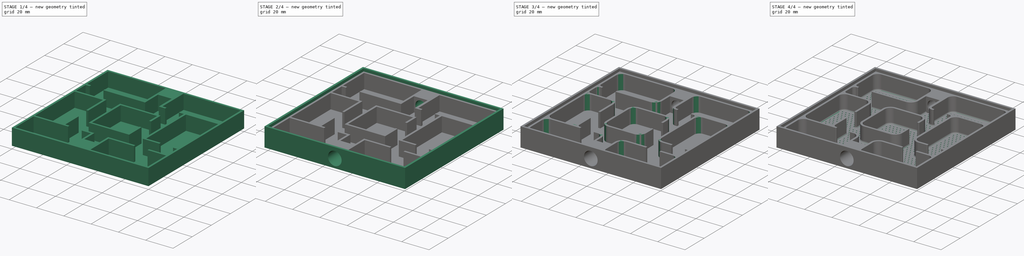
[diagram: build sequence overview — one tinted view per stage of 4, left to right]
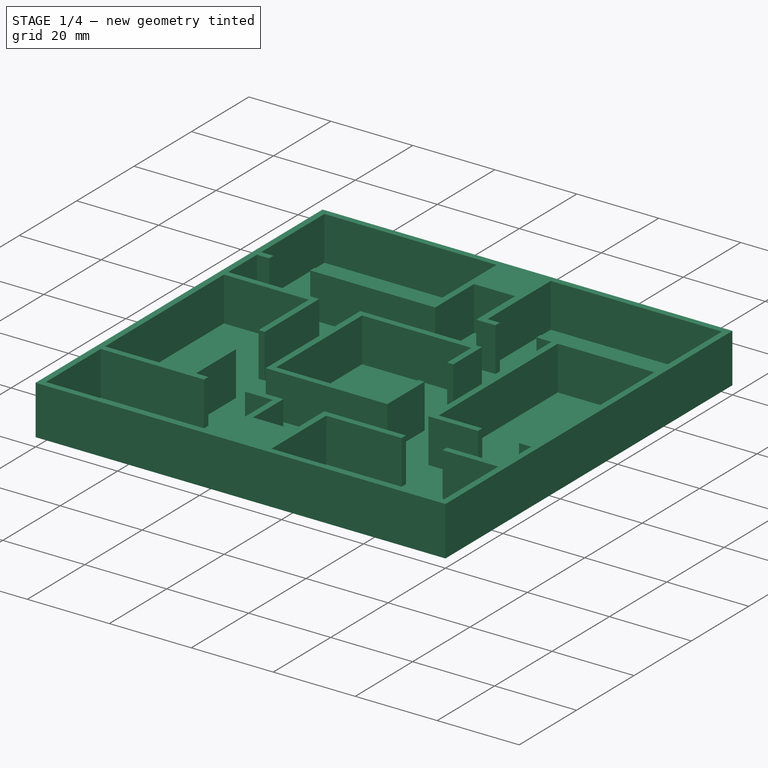
[diagram: stage 1 of 4 — iso view after this stage's code; geometry added in this stage tinted green]
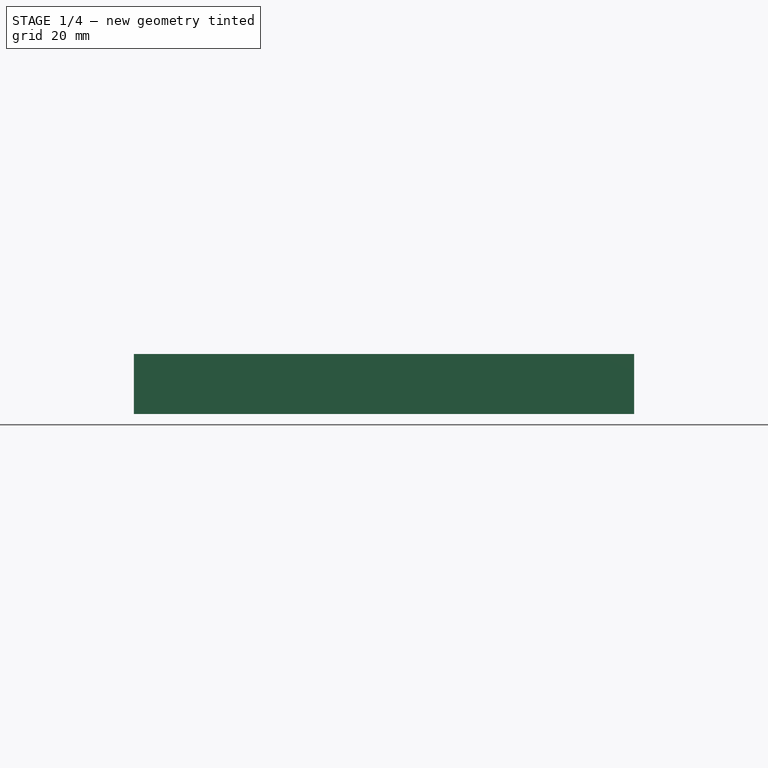
[diagram: stage 1 of 4 — front view after this stage's code; geometry added in this stage tinted green]
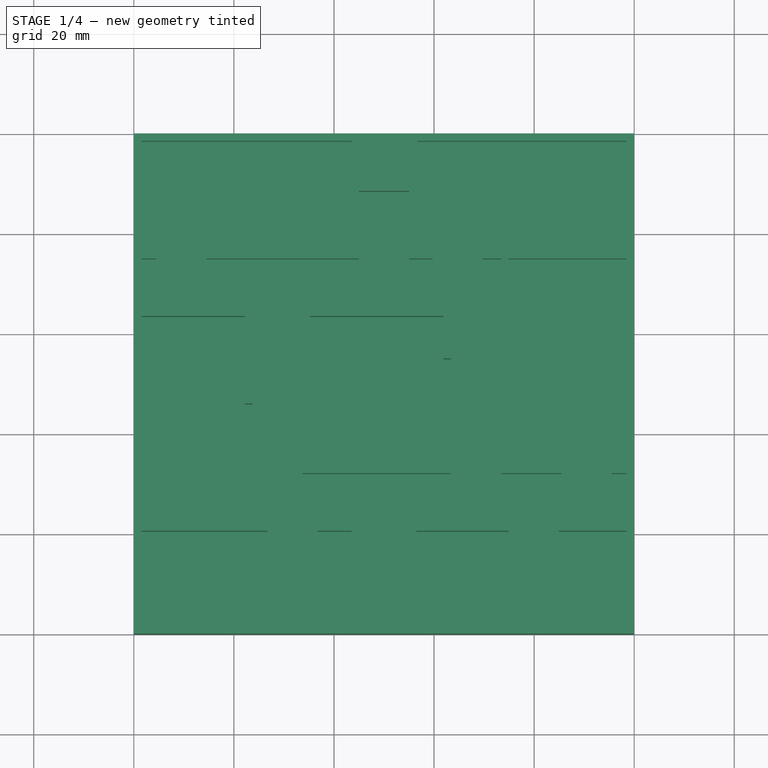
[diagram: stage 1 of 4 — top view after this stage's code; geometry added in this stage tinted green]
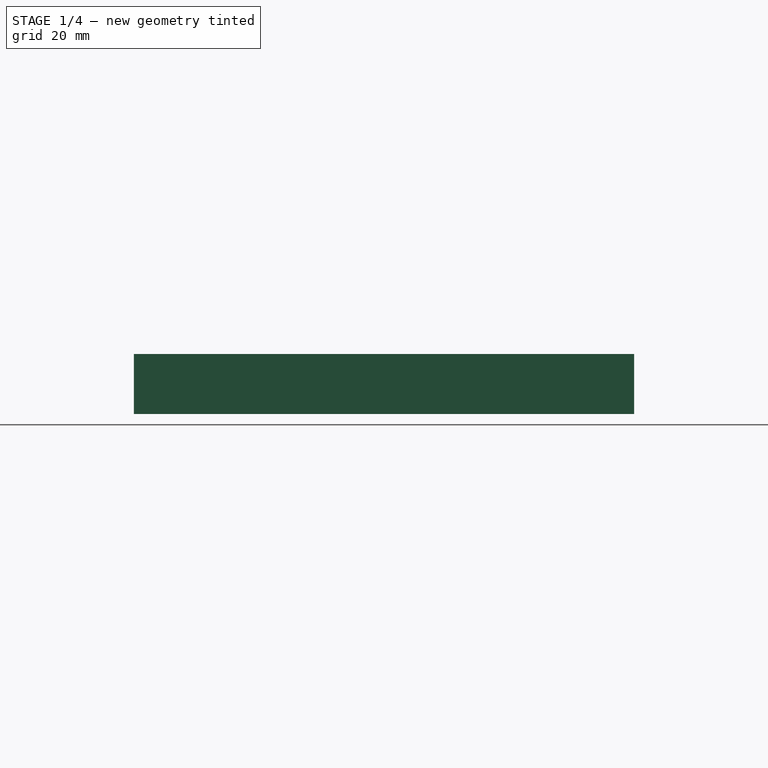
[diagram: stage 1 of 4 — right view after this stage's code; geometry added in this stage tinted green]
FCSTD DOCUMENT  (FreeCAD 0.18R13661 (Git))
Label: test2
License: All rights reserved
LicenseURL: http://en.wikipedia.org/wiki/All_rights_reserved
objects: Sketcher::SketchObject×7, PartDesign::Fillet×6, PartDesign::Pad×4, PartDesign::Hole×2, PartDesign::Pocket×1, PartDesign::Body×1
note: 28 computed .brp shape members not serialized (recipe doc carries the construction recipe); baked Part::Feature solids carry a one-line shape summary decoded from their .brp

FEATURE [Sketcher::SketchObject] Sketch  label="base"
  MapMode = 5
  Support = -> [XY_Plane]
  sketch-geometry (4):
    g0: LineSegment StartX=0 StartY=0 StartZ=0 EndX=100 EndY=0 EndZ=0
    g1: LineSegment StartX=100 StartY=0 StartZ=0 EndX=100 EndY=100 EndZ=0
    g2: LineSegment StartX=100 StartY=100 StartZ=0 EndX=0 EndY=100 EndZ=0
    g3: LineSegment StartX=0 StartY=100 StartZ=0 EndX=0 EndY=0 EndZ=0
  constraints (11):
    c: Coincident(g0,g1)
    c: Coincident(g1,g2)
    c: Coincident(g2,g3)
    c: Coincident(g3,g0)
    c: Horizontal(g0)
    c: Horizontal(g2)
    c: Vertical(g1)
    c: Vertical(g3)
    c: Coincident(g0,g-1)
    c: Distance(g1) = 100
    c: Distance(g0) = 100
FEATURE [PartDesign::Pad] Pad  label="Base"
  Length = 1.25
  Length2 = 100
  Profile = -> Sketch
  Type = 0
FEATURE [Sketcher::SketchObject] Sketch001  label="chambers"
  ExternalGeometry = -> [Sketch]
  MapMode = 5
  Support = -> [XY_Plane]
  sketch-geometry (119):
    g0: LineSegment [constr] StartX=45 StartY=74.9876 StartZ=0 EndX=98.5 EndY=74.9876 EndZ=0
    g1: LineSegment [constr] StartX=98.5 StartY=74.9876 StartZ=0 EndX=98.5 EndY=33.5565 EndZ=0
    g2: LineSegment [constr] StartX=58.9283 StartY=98.5 StartZ=0 EndX=98.5 EndY=98.5 EndZ=0
    g3: LineSegment [constr] StartX=98.5 StartY=98.5 StartZ=0 EndX=98.5 EndY=59.3012 EndZ=0
    g4: LineSegment [constr] StartX=50 StartY=100 StartZ=0 EndX=50 EndY=76.0527 EndZ=0
    g5: LineSegment StartX=0 StartY=0 StartZ=0 EndX=100 EndY=0 EndZ=0
    g6: LineSegment StartX=100 StartY=0 StartZ=0 EndX=100 EndY=100 EndZ=0
    g7: LineSegment StartX=100 StartY=100 StartZ=0 EndX=0 EndY=100 EndZ=0
    g8: LineSegment StartX=0 StartY=100 StartZ=0 EndX=0 EndY=0 EndZ=0
    g9: LineSegment [constr] StartX=0 StartY=1.5 StartZ=0 EndX=1.5 EndY=1.5 EndZ=0
    g10: LineSegment [constr] StartX=1.5 StartY=1.5 StartZ=0 EndX=1.5 EndY=0 EndZ=0
    g11: LineSegment [constr] StartX=98.5 StartY=100 StartZ=0 EndX=98.5 EndY=98.5 EndZ=0
    g12: LineSegment [constr] StartX=98.5 StartY=98.5 StartZ=0 EndX=100 EndY=98.5 EndZ=0
    g13: LineSegment [constr] StartX=1.5 StartY=1.5 StartZ=0 EndX=98.5 EndY=1.5 EndZ=0
    g14: LineSegment [constr] StartX=98.5 StartY=1.5 StartZ=0 EndX=98.5 EndY=98.5 EndZ=0
    g15: LineSegment [constr] StartX=98.5 StartY=98.5 StartZ=0 EndX=1.5 EndY=98.5 EndZ=0
    g16: LineSegment [constr] StartX=1.5 StartY=98.5 StartZ=0 EndX=1.5 EndY=1.5 EndZ=0
    g17: LineSegment [constr] StartX=50 StartY=0 StartZ=0 EndX=50 EndY=23.7426 EndZ=0
    g18: LineSegment [constr] StartX=98.5 StartY=1.5 StartZ=0 EndX=56.5 EndY=1.5 EndZ=0
    g19: LineSegment [constr] StartX=56.5 StartY=1.5 StartZ=0 EndX=56.5 EndY=20.5565 EndZ=0
    g20: LineSegment [constr] StartX=56.5 StartY=20.5565 StartZ=0 EndX=98.5 EndY=20.5565 EndZ=0
    g21: LineSegment [constr] StartX=98.5 StartY=20.5565 StartZ=0 EndX=98.5 EndY=1.5 EndZ=0
    g22: LineSegment [constr] StartX=1.5 StartY=1.5 StartZ=0 EndX=43.5 EndY=1.5 EndZ=0
    g23: LineSegment [constr] StartX=43.5 StartY=1.5 StartZ=0 EndX=43.5 EndY=20.5565 EndZ=0
    g24: LineSegment [constr] StartX=43.5 StartY=20.5565 StartZ=0 EndX=1.5 EndY=20.5565 EndZ=0
    g25: LineSegment [constr] StartX=1.5 StartY=20.5565 StartZ=0 EndX=1.5 EndY=1.5 EndZ=0
    g26: LineSegment [constr] StartX=26.7071 StartY=20.5565 StartZ=0 EndX=36.7071 EndY=20.5565 EndZ=0
    g27: LineSegment [constr] StartX=6.5 StartY=22.0565 StartZ=0 EndX=6.5 EndY=20.5565 EndZ=0
    g28: LineSegment StartX=1.5 StartY=98.5 StartZ=0 EndX=43.5 EndY=98.5 EndZ=0
    g29: LineSegment StartX=43.5 StartY=98.5 StartZ=0 EndX=43.5 EndY=76.4876 EndZ=0
    g30: LineSegment StartX=1.5 StartY=76.4876 StartZ=0 EndX=1.5 EndY=98.5 EndZ=0
    g31: LineSegment [constr] StartX=50 StartY=98.5 StartZ=0 EndX=45 EndY=98.5 EndZ=0
    g32: LineSegment [constr] StartX=50 StartY=98.5 StartZ=0 EndX=55 EndY=98.5 EndZ=0
    g33: LineSegment [constr] StartX=45 StartY=98.5 StartZ=0 EndX=45 EndY=88.5 EndZ=0
    g34: LineSegment StartX=45 StartY=88.5 StartZ=0 EndX=55 EndY=88.5 EndZ=0
    g35: LineSegment [constr] StartX=55 StartY=88.5 StartZ=0 EndX=55 EndY=98.5 EndZ=0
    g36: LineSegment [constr] StartX=45 StartY=95.9558 StartZ=0 EndX=43.5 EndY=95.9558 EndZ=0
    g37: LineSegment StartX=45 StartY=88.5 StartZ=0 EndX=45 EndY=74.9876 EndZ=0
    g38: LineSegment StartX=45 StartY=74.9876 StartZ=0 EndX=14.5 EndY=74.9876 EndZ=0
    g39: LineSegment [constr] StartX=43.5 StartY=76.4876 StartZ=0 EndX=43.5 EndY=74.9876 EndZ=0
    g40: LineSegment StartX=1.5 StartY=76.4876 StartZ=0 EndX=4.5 EndY=76.4876 EndZ=0
    g41: LineSegment [constr] StartX=4.5 StartY=76.4876 StartZ=0 EndX=14.5 EndY=76.4876 EndZ=0
    g42: LineSegment StartX=43.5 StartY=76.4876 StartZ=0 EndX=14.5 EndY=76.4876 EndZ=0
    g43: LineSegment StartX=14.5 StartY=74.9876 StartZ=0 EndX=14.5 EndY=76.4876 EndZ=0
    g44: LineSegment StartX=1.5 StartY=64.9876 StartZ=0 EndX=23.7071 EndY=64.9876 EndZ=0
    g45: LineSegment [constr] StartX=23.7071 StartY=64.9876 StartZ=0 EndX=33.7071 EndY=64.9876 EndZ=0
    g46: LineSegment [constr] StartX=14.5 StartY=74.9876 StartZ=0 EndX=14.5 EndY=64.9876 EndZ=0
    g47: LineSegment StartX=98.5 StartY=98.5 StartZ=0 EndX=56.7128 EndY=98.5 EndZ=0
    g48: LineSegment [constr] StartX=56.7128 StartY=98.5 StartZ=0 EndX=56.7128 EndY=76.4876 EndZ=0
    g49: LineSegment StartX=98.5 StartY=76.4876 StartZ=0 EndX=98.5 EndY=98.5 EndZ=0
    g50: LineSegment StartX=55 StartY=88.5 StartZ=0 EndX=55 EndY=74.9876 EndZ=0
    g51: LineSegment StartX=56.7128 StartY=76.4876 StartZ=0 EndX=56.7128 EndY=98.5 EndZ=0
    g52: LineSegment [constr] StartX=14.5 StartY=64.9876 StartZ=0 EndX=14.5 EndY=63.4876 EndZ=0
    g53: LineSegment StartX=22.2071 StartY=63.4876 StartZ=0 EndX=1.5 EndY=63.4876 EndZ=0
    g54: LineSegment StartX=1.5 StartY=63.4876 StartZ=0 EndX=1.5 EndY=22.0565 EndZ=0
    g55: LineSegment StartX=1.5 StartY=22.0565 StartZ=0 EndX=22.2071 EndY=22.0565 EndZ=0
    g56: LineSegment [constr] StartX=22.2071 StartY=22.0565 StartZ=0 EndX=22.2071 EndY=63.4876 EndZ=0
    g57: LineSegment StartX=23.7071 StartY=64.9876 StartZ=0 EndX=23.7071 EndY=45.9907 EndZ=0
    g58: LineSegment StartX=22.2071 StartY=63.4876 StartZ=0 EndX=22.2071 EndY=45.9907 EndZ=0
    g59: LineSegment [constr] StartX=22.2071 StartY=45.9907 StartZ=0 EndX=22.2071 EndY=35.9907 EndZ=0
    g60: LineSegment StartX=22.2071 StartY=35.9907 StartZ=0 EndX=22.2071 EndY=22.0565 EndZ=0
    g61: LineSegment StartX=23.7071 StartY=45.9907 StartZ=0 EndX=22.2071 EndY=45.9907 EndZ=0
    g62: LineSegment StartX=22.2071 StartY=35.9907 StartZ=0 EndX=23.7071 EndY=35.9907 EndZ=0
    g63: LineSegment StartX=1.5 StartY=20.5565 StartZ=0 EndX=26.7071 EndY=20.5565 EndZ=0
    g64: LineSegment StartX=1.5 StartY=20.5565 StartZ=0 EndX=1.5 EndY=1.5 EndZ=0
    g65: LineSegment StartX=43.5 StartY=1.5 StartZ=0 EndX=1.5 EndY=1.5 EndZ=0
    g66: LineSegment StartX=43.5 StartY=1.5 StartZ=0 EndX=43.5 EndY=20.5565 EndZ=0
    g67: LineSegment StartX=36.7071 StartY=20.5565 StartZ=0 EndX=43.5 EndY=20.5565 EndZ=0
    g68: LineSegment StartX=36.7071 StartY=20.5565 StartZ=0 EndX=36.7071 EndY=22.0565 EndZ=0
    g69: LineSegment StartX=36.7071 StartY=22.0565 StartZ=0 EndX=45 EndY=22.0565 EndZ=0
    g70: LineSegment StartX=45 StartY=11.5 StartZ=0 EndX=45 EndY=22.0565 EndZ=0
    g71: LineSegment [constr] StartX=45 StartY=11.5 StartZ=0 EndX=45 EndY=1.5 EndZ=0
    g72: LineSegment [constr] StartX=45 StartY=11.5 StartZ=0 EndX=43.5 EndY=11.5 EndZ=0
    g73: LineSegment StartX=45 StartY=11.5 StartZ=0 EndX=55 EndY=11.5 EndZ=0
    g74: LineSegment [constr] StartX=55 StartY=11.5 StartZ=0 EndX=56.5 EndY=11.5 EndZ=0
    g75: LineSegment StartX=55 StartY=22.0565 StartZ=0 EndX=55 EndY=11.5 EndZ=0
    g76: LineSegment StartX=74.9196 StartY=22.0565 StartZ=0 EndX=55 EndY=22.0565 EndZ=0
    g77: LineSegment [constr] StartX=56.5 StartY=20.5565 StartZ=0 EndX=56.5 EndY=22.0565 EndZ=0
    g78: LineSegment StartX=56.5 StartY=1.5 StartZ=0 EndX=56.5 EndY=20.5565 EndZ=0
    g79: LineSegment StartX=56.5 StartY=20.5565 StartZ=0 EndX=74.9196 EndY=20.5565 EndZ=0
    g80: LineSegment [constr] StartX=74.9196 StartY=20.5565 StartZ=0 EndX=84.9196 EndY=20.5565 EndZ=0
    g81: LineSegment StartX=84.9196 StartY=20.5565 StartZ=0 EndX=98.5 EndY=20.5565 EndZ=0
    g82: LineSegment StartX=74.9196 StartY=22.0565 StartZ=0 EndX=74.9196 EndY=20.5565 EndZ=0
    g83: LineSegment StartX=84.9196 StartY=22.0565 StartZ=0 EndX=84.9196 EndY=20.5565 EndZ=0
    g84: LineSegment StartX=98.5 StartY=33.5565 StartZ=0 EndX=95.5 EndY=33.5565 EndZ=0
    g85: LineSegment StartX=98.5 StartY=22.0565 StartZ=0 EndX=84.9196 EndY=22.0565 EndZ=0
    g86: LineSegment [constr] StartX=33.7071 StartY=22.0565 StartZ=0 EndX=33.7071 EndY=32.0565 EndZ=0
    g87: LineSegment StartX=85.5 StartY=33.5565 StartZ=0 EndX=85.5 EndY=32.0565 EndZ=0
    g88: LineSegment StartX=98.5 StartY=33.5565 StartZ=0 EndX=98.5 EndY=74.9876 EndZ=0
    g89: LineSegment [constr] StartX=85.5 StartY=32.0565 StartZ=0 EndX=95.5 EndY=32.0565 EndZ=0
    g90: LineSegment StartX=56.5 StartY=1.5 StartZ=0 EndX=98.5 EndY=1.5 EndZ=0
    g91: LineSegment StartX=98.5 StartY=1.5 StartZ=0 EndX=98.5 EndY=20.5565 EndZ=0
    g92: LineSegment [constr] StartX=63.3936 StartY=32.0565 StartZ=0 EndX=73.3936 EndY=32.0565 EndZ=0
    g93: LineSegment [constr] StartX=33.7071 StartY=64.9876 StartZ=0 EndX=63.3936 EndY=64.9876 EndZ=0
    g94: LineSegment [constr] StartX=63.3936 StartY=64.9876 StartZ=0 EndX=63.3936 EndY=32.0565 EndZ=0
    g95: LineSegment [constr] StartX=63.3936 StartY=32.0565 StartZ=0 EndX=33.7071 EndY=32.0565 EndZ=0
    g96: LineSegment StartX=73.3936 StartY=32.0565 StartZ=0 EndX=85.5 EndY=32.0565 EndZ=0
    g97: LineSegment StartX=73.3936 StartY=74.9876 StartZ=0 EndX=73.3936 EndY=32.0565 EndZ=0
    g98: LineSegment StartX=74.8936 StartY=74.9876 StartZ=0 EndX=74.8936 EndY=33.5565 EndZ=0
    g99: LineSegment StartX=74.8936 StartY=33.5565 StartZ=0 EndX=85.5 EndY=33.5565 EndZ=0
    g100: LineSegment StartX=74.8936 StartY=74.9876 StartZ=0 EndX=98.5 EndY=74.9876 EndZ=0
    g101: LineSegment [constr] StartX=73.3936 StartY=53.2611 StartZ=0 EndX=74.8936 EndY=53.2611 EndZ=0
    g102: LineSegment [constr] StartX=33.7071 StartY=64.9876 StartZ=0 EndX=33.7071 EndY=32.0565 EndZ=0
    g103: LineSegment StartX=4.5 StartY=76.4876 StartZ=0 EndX=4.5 EndY=74.9876 EndZ=0
    g104: LineSegment StartX=4.5 StartY=74.9876 StartZ=0 EndX=1.5 EndY=74.9876 EndZ=0
    g105: LineSegment StartX=1.5 StartY=74.9876 StartZ=0 EndX=1.5 EndY=64.9876 EndZ=0
    g106: LineSegment StartX=95.5 StartY=32.0565 StartZ=0 EndX=95.5 EndY=33.5565 EndZ=0
    g107: LineSegment StartX=95.5 StartY=32.0565 StartZ=0 EndX=98.5 EndY=32.0565 EndZ=0
    g108: LineSegment StartX=98.5 StartY=32.0565 StartZ=0 EndX=98.5 EndY=22.0565 EndZ=0
    g109: LineSegment StartX=23.7071 StartY=35.9907 StartZ=0 EndX=23.7071 EndY=22.0565 EndZ=0
    g110: LineSegment StartX=23.7071 StartY=22.0565 StartZ=0 EndX=26.7071 EndY=22.0565 EndZ=0
    g111: LineSegment StartX=26.7071 StartY=22.0565 StartZ=0 EndX=26.7071 EndY=20.5565 EndZ=0
    g112: LineSegment StartX=98.5 StartY=76.4876 StartZ=0 EndX=69.7128 EndY=76.4876 EndZ=0
    g113: LineSegment StartX=55 StartY=74.9876 StartZ=0 EndX=59.7128 EndY=74.9876 EndZ=0
    g114: LineSegment [constr] StartX=59.7128 StartY=74.9876 StartZ=0 EndX=69.7128 EndY=74.9876 EndZ=0
    g115: LineSegment StartX=69.7128 StartY=74.9876 StartZ=0 EndX=73.3936 EndY=74.9876 EndZ=0
    g116: LineSegment StartX=69.7128 StartY=74.9876 StartZ=0 EndX=69.7128 EndY=76.4876 EndZ=0
    g117: LineSegment StartX=56.7128 StartY=76.4876 StartZ=0 EndX=59.7128 EndY=76.4876 EndZ=0
    g118: LineSegment StartX=59.7128 StartY=76.4876 StartZ=0 EndX=59.7128 EndY=74.9876 EndZ=0
  constraints (328):
    c: Coincident(g0,g1)
    c: Horizontal(g0)
    c: Vertical(g1)
    c: Coincident(g2,g3)
    c: Horizontal(g2)
    c: Vertical(g3)
    c: PointOnObject(g4,g-3)
    c: Vertical(g4)
    c: Coincident(g5,g6)
    c: Coincident(g6,g7)
    c: Coincident(g7,g8)
    c: Coincident(g8,g5)
    c: Horizontal(g5)
    c: Horizontal(g7)
    c: Vertical(g6)
    c: Vertical(g8)
    c: Coincident(g5,g-1)
    c: Coincident(g6,g-4)
    c: PointOnObject(g9,g8)
    c: Horizontal(g9)
    c: Coincident(g10,g9)
    c: PointOnObject(g10,g5)
    c: Vertical(g10)
    c: Equal(g9,g10)
    c: PointOnObject(g11,g7)
    c: Vertical(g11)
    c: Coincident(g12,g11)
    c: PointOnObject(g12,g6)
    c: Horizontal(g12)
    c: Equal(g12,g11)
    c: Equal(g12,g10)
    c: Distance(g9) = 1.5
    c: Coincident(g13,g14)
    c: Coincident(g14,g15)
    c: Coincident(g15,g16)
    c: Horizontal(g13)
    c: Horizontal(g15)
    c: Vertical(g14)
    c: Vertical(g16)
    c: Coincident(g13,g9)
    c: Coincident(g14,g11)
    c: Distance(g4,g7) = 50
    c: Coincident(g2,g11)
    c: PointOnObject(g0,g14)
    c: Vertical(g17)
    c: PointOnObject(g17,g5)
    c: Distance(g-1,g17) = 50
    c: Coincident(g18,g19)
    c: Coincident(g19,g20)
    c: Coincident(g20,g21)
    c: Coincident(g21,g18)
    c: Horizontal(g18)
    c: Horizontal(g20)
    c: Vertical(g19)
    c: Vertical(g21)
    c: Coincident(g18,g13)
    c: Coincident(g22,g23)
    c: Coincident(g23,g24)
    c: Coincident(g24,g25)
    c: Coincident(g25,g22)
    c: Horizontal(g22)
    c: Horizontal(g24)
    c: Vertical(g23)
    c: Vertical(g25)
    c: Coincident(g22,g9)
    c: PointOnObject(g24,g16)
    c: Horizontal(g26)
    c: Coincident(g28,g29)
    c: Coincident(g30,g28)
    c: Horizontal(g28)
    c: Vertical(g29)
    c: Vertical(g30)
    c: Coincident(g28,g15)
    c: PointOnObject(g31,g4)
    c: Horizontal(g31)
    c: Distance(g31) = 5
    c: Coincident(g32,g31)
    c: Horizontal(g32)
    c: Equal(g32,g31)
    c: PointOnObject(g31,g15)
    c: Coincident(g33,g31)
    c: Vertical(g33)
    c: Coincident(g34,g33)
    c: Horizontal(g34)
    c: Coincident(g35,g34)
    c: Coincident(g35,g32)
    c: Vertical(g35)
    c: Distance(g33) = 10
    c: PointOnObject(g36,g29)
    c: Horizontal(g36)
    c: Equal(g36,g11)
    c: PointOnObject(g36,g33)
    c: Coincident(g37,g33)
    c: Vertical(g37)
    c: Coincident(g38,g37)
    c: Horizontal(g38)
    c: Coincident(g39,g29)
    c: Vertical(g39)
    c: PointOnObject(g39,g38)
    c: Equal(g36,g39)
    c: Coincident(g40,g30)
    c: Horizontal(g40)
    c: Coincident(g41,g40)
    c: Horizontal(g41)
    c: Equal(g41,g34)
    c: Coincident(g42,g29)
    c: Coincident(g42,g41)
    c: Horizontal(g42)
    c: Coincident(g43,g38)
    c: Coincident(g43,g41)
    c: Vertical(g43)
    c: Horizontal(g44)
    c: Coincident(g45,g44)
    c: Horizontal(g45)
    c: Coincident(g46,g38)
    c: PointOnObject(g46,g45)
    c: Vertical(g46)
    c: Equal(g46,g34)
    c: Coincident(g47,g48)
    c: Coincident(g49,g47)
    c: Horizontal(g47)
    c: Vertical(g48)
    c: Vertical(g49)
    c: Coincident(g47,g2)
    c: PointOnObject(g50,g35)
    c: PointOnObject(g51,g48)
    c: Coincident(g50,g34)
    c: Coincident(g51,g47)
    c: Equal(g45,g34)
    c: Equal(g52,g43)
    c: Vertical(g52)
    c: Coincident(g53,g54)
    c: Coincident(g54,g55)
    c: Coincident(g55,g56)
    c: Coincident(g56,g53)
    c: Horizontal(g53)
    c: Horizontal(g55)
    c: Vertical(g54)
    c: Vertical(g56)
    c: PointOnObject(g54,g16)
    c: PointOnObject(g52,g53)
    c: Coincident(g57,g44)
    c: Vertical(g57)
    c: Coincident(g58,g53)
    c: Coincident(g60,g59)
    c: Coincident(g60,g55)
    c: Equal(g59,g45)
    c: Coincident(g59,g58)
    c: Vertical(g58)
    c: Vertical(g60)
    c: Coincident(g61,g57)
    c: Coincident(g61,g58)
    c: Horizontal(g61)
    c: Equal(g52,g61)
    c: Coincident(g62,g59)
    c: Horizontal(g62)
    c: Vertical(g62,g57)
    c: PointOnObject(g27,g24)
    c: PointOnObject(g27,g55)
    c: Vertical(g27)
    c: Equal(g62,g27)
    c: Coincident(g63,g24)
    c: Horizontal(g63)
    c: Coincident(g64,g24)
    c: Equal(g45,g26)
    c: Coincident(g65,g22)
    c: Coincident(g65,g64)
    c: Coincident(g64,g9)
    c: Coincident(g66,g22)
    c: Coincident(g67,g26)
    c: Coincident(g67,g66)
    c: Coincident(g66,g23)
    c: Coincident(g68,g26)
    c: Vertical(g37,g69)
    c: Horizontal(g69)
    c: Vertical(g68)
    c: Vertical(g70)
    c: Coincident(g71,g70)
    c: Vertical(g71)
    c: Coincident(g72,g70)
    c: Horizontal(g72)
    c: Equal(g72,g68)
    c: PointOnObject(g72,g66)
    c: Equal(g39,g72)
    c: Coincident(g70,g69)
    c: PointOnObject(g71,g13)
    c: Equal(g71,g33)
    c: Coincident(g73,g70)
    c: Equal(g73,g34)
    c: Horizontal(g73)
    c: Coincident(g74,g73)
    c: PointOnObject(g74,g19)
    c: Horizontal(g74)
    c: Coincident(g75,g73)
    c: Horizontal(g76)
    c: Coincident(g76,g75)
    c: Vertical(g75)
    c: PointOnObject(g77,g76)
    c: Coincident(g77,g19)
    c: Vertical(g77)
    c: Equal(g74,g77)
    c: Horizontal(g69,g75)
    c: Coincident(g78,g18)
    c: Coincident(g79,g78)
    c: Horizontal(g80)
    c: Horizontal(g81)
    c: Coincident(g81,g20)
    c: Equal(g80,g73)
    c: Coincident(g80,g81)
    c: Coincident(g79,g80)
    c: Coincident(g78,g19)
    c: Coincident(g82,g76)
    c: Coincident(g82,g79)
    c: Coincident(g83,g80)
    c: Coincident(g84,g1)
    c: Coincident(g85,g83)
    c: Vertical(g82)
    c: Vertical(g83)
    c: Equal(g83,g82)
    c: Horizontal(g85)
    c: Equal(g86,g45)
    c: Vertical(g86)
    c: Vertical(g87)
    c: Equal(g87,g83)
    c: Coincident(g88,g1)
    c: Coincident(g88,g0)
    c: Coincident(g89,g87)
    c: Horizontal(g89)
    c: Coincident(g90,g18)
    c: Coincident(g91,g90)
    c: Coincident(g91,g20)
    c: Coincident(g90,g13)
    c: Equal(g92,g89)
    c: Horizontal(g93)
    c: Coincident(g93,g45)
    c: Vertical(g94)
    c: Coincident(g94,g93)
    c: Horizontal(g95)
    c: Coincident(g95,g94)
    c: Coincident(g95,g86)
    c: Horizontal(g96)
    c: Coincident(g87,g96)
    c: Horizontal(g94,g96)
    c: PointOnObject(g97,g0)
    c: Vertical(g97)
    c: PointOnObject(g92,g94)
    c: Horizontal(g50,g37)
    c: Vertical(g98)
    c: Coincident(g99,g98)
    c: Coincident(g99,g87)
    c: Coincident(g100,g98)
    c: Coincident(g100,g0)
    c: PointOnObject(g101,g97)
    c: PointOnObject(g101,g98)
    c: Horizontal(g101)
    c: Equal(g101,g87)
    c: PointOnObject(g98,g0)
    c: Coincident(g96,g97)
    c: Coincident(g102,g45)
    c: Vertical(g102)
    c: Coincident(g102,g86)
    c: Horizontal(g99)
    c: Horizontal(g87,g84)
    c: Horizontal(g84)
    c: Coincident(g92,g94)
    c: Horizontal(g92)
    c: Coincident(g92,g96)
    c: Equal(g73,g92)
    c: Distance(g40) = 3
    c: Equal(g84,g40)
    c: Distance(g100) = 23.6064
    c: Distance(g55) = 20.7071
    c: Coincident(g52,g46)
    c: PointOnObject(g44,g16)
    c: Coincident(g40,g103)
    c: Coincident(g103,g104)
    c: Horizontal(g104)
    c: Coincident(g104,g105)
    c: Vertical(g105)
    c: Vertical(g103)
    c: Equal(g103,g43)
    c: Coincident(g105,g44)
    c: Coincident(g106,g89)
    c: Coincident(g106,g84)
    c: Vertical(g106)
    c: Coincident(g89,g107)
    c: Coincident(g107,g108)
    c: Coincident(g108,g85)
    c: Vertical(g108)
    c: Horizontal(g107)
    c: PointOnObject(g85,g14)
    c: Equal(g83,g87)
    c: Equal(g11,g106)
    c: PointOnObject(g86,g69)
    c: Coincident(g68,g69)
    c: PointOnObject(g26,g24)
    c: Coincident(g26,g63)
    c: Coincident(g62,g109)
    c: Vertical(g109)
    c: Coincident(g109,g110)
    c: Horizontal(g110)
    c: Coincident(g110,g111)
    c: Vertical(g111)
    c: Coincident(g111,g26)
    c: Horizontal(g109,g55)
    c: Equal(g110,g84)
    c: Coincident(g49,g112)
    c: Horizontal(g112)
    c: Coincident(g0,g37)
    c: Horizontal(g29,g112)
    c: Coincident(g50,g113)
    c: Coincident(g113,g114)
    c: Coincident(g114,g115)
    c: Equal(g114,g34)
    c: Coincident(g115,g97)
    c: PointOnObject(g114,g0)
    c: PointOnObject(g113,g0)
    c: Coincident(g116,g114)
    c: Coincident(g116,g112)
    c: Vertical(g116)
    c: Coincident(g48,g117)
    c: Horizontal(g117)
    c: Coincident(g117,g118)
    c: Vertical(g118)
    c: Coincident(g113,g118)
    c: Coincident(g48,g51)
    c: Equal(g117,g84)
    c: Horizontal(g117,g112)
FEATURE [PartDesign::Pad] Pad001  label="Outer chambers"
  BaseFeature = -> Pad
  Length = 12
  Length2 = 100
  Profile = -> Sketch001
  Type = 0
  expr: Length = 12
FEATURE [Sketcher::SketchObject] Sketch002
  ExternalGeometry = -> [Sketch001]
  MapMode = 5
  Support = -> [XY_Plane]
  sketch-geometry (18):
    g0: LineSegment StartX=33.7071 StartY=32.0565 StartZ=0 EndX=63.3936 EndY=32.0565 EndZ=0
    g1: LineSegment StartX=63.3936 StartY=32.0565 StartZ=0 EndX=63.3936 EndY=45.014 EndZ=0
    g2: LineSegment StartX=63.3936 StartY=45.014 StartZ=0 EndX=61.8936 EndY=45.014 EndZ=0
    g3: LineSegment StartX=61.8936 StartY=45.014 StartZ=0 EndX=61.8936 EndY=33.5565 EndZ=0
    g4: LineSegment StartX=61.8936 StartY=33.5565 StartZ=0 EndX=35.2071 EndY=33.5565 EndZ=0
    g5: LineSegment StartX=35.2071 StartY=33.5565 StartZ=0 EndX=35.2071 EndY=63.4876 EndZ=0
    g6: LineSegment StartX=35.2071 StartY=63.4876 StartZ=0 EndX=61.8936 EndY=63.4876 EndZ=0
    g7: LineSegment StartX=61.8936 StartY=63.4876 StartZ=0 EndX=61.8936 EndY=55.014 EndZ=0
    g8: LineSegment StartX=61.8936 StartY=55.014 StartZ=0 EndX=63.3936 EndY=55.014 EndZ=0
    g9: LineSegment StartX=63.3936 StartY=55.014 StartZ=0 EndX=63.3936 EndY=64.9876 EndZ=0
    g10: LineSegment StartX=63.3936 StartY=64.9876 StartZ=0 EndX=33.7071 EndY=64.9876 EndZ=0
    g11: LineSegment StartX=33.7071 StartY=64.9876 StartZ=0 EndX=33.7071 EndY=32.0565 EndZ=0
    g12: LineSegment [constr] StartX=35.2071 StartY=33.5565 StartZ=0 EndX=33.7071 EndY=33.5565 EndZ=0
    g13: LineSegment [constr] StartX=61.8936 StartY=33.5565 StartZ=0 EndX=61.8936 EndY=32.0565 EndZ=0
    g14: LineSegment [constr] StartX=61.8936 StartY=63.4876 StartZ=0 EndX=61.8936 EndY=64.9876 EndZ=0
    g15: LineSegment [constr] StartX=23.7071 StartY=64.9876 StartZ=0 EndX=33.7071 EndY=64.9876 EndZ=0
    g16: LineSegment [constr] StartX=63.3936 StartY=64.9876 StartZ=0 EndX=73.3936 EndY=64.9876 EndZ=0
    g17: LineSegment [constr] StartX=61.8936 StartY=55.014 StartZ=0 EndX=61.8936 EndY=45.014 EndZ=0
  constraints (53):
    c: Coincident(g5,g4)
    c: Horizontal(g4)
    c: Vertical(g5)
    c: Coincident(g6,g5)
    c: Horizontal(g6)
    c: Coincident(g6,g7)
    c: Coincident(g12,g4)
    c: Horizontal(g12)
    c: PointOnObject(g12,g11)
    c: Coincident(g11,g0)
    c: Horizontal(g0)
    c: Coincident(g3,g4)
    c: Vertical(g3)
    c: Coincident(g2,g3)
    c: Horizontal(g2)
    c: Coincident(g1,g2)
    c: Vertical(g1)
    c: Coincident(g0,g1)
    c: Vertical(g11)
    c: Coincident(g11,g10)
    c: Horizontal(g10)
    c: Coincident(g9,g10)
    c: Vertical(g9)
    c: Coincident(g14,g6)
    c: Vertical(g14)
    c: PointOnObject(g14,g10)
    c: Vertical(g7)
    c: Horizontal(g8)
    c: Coincident(g8,g7)
    c: Coincident(g8,g9)
    c: Equal(g8,g2)
    c: Vertical(g8,g1)
    c: Vertical(g13)
    c: Equal(g12,g2)
    c: Equal(g13,g2)
    c: Coincident(g3,g13)
    c: PointOnObject(g13,g0)
    c: Equal(g14,g8)
    c: Horizontal(g15)
    c: Coincident(g10,g15)
    c: Coincident(g16,g9)
    c: Horizontal(g16)
    c: Equal(g16,g15)
    c: Coincident(g17,g7)
    c: Vertical(g17)
    c: Equal(g17,g16)
    c: Coincident(g17,g2)
    c: PointOnObject(g16,g-10)
    c: Equal(g8,g-12)
    c: PointOnObject(g15,g-13)
    c: Equal(g15,g-6)
    c: Coincident(g15,g-13)
    c: Horizontal(g0,g-10)
FEATURE [PartDesign::Pad] Pad002  label="Central chamber"
  BaseFeature = -> Pad001
  Length = 12
  Length2 = 100
  Profile = -> Sketch002
  Type = 0
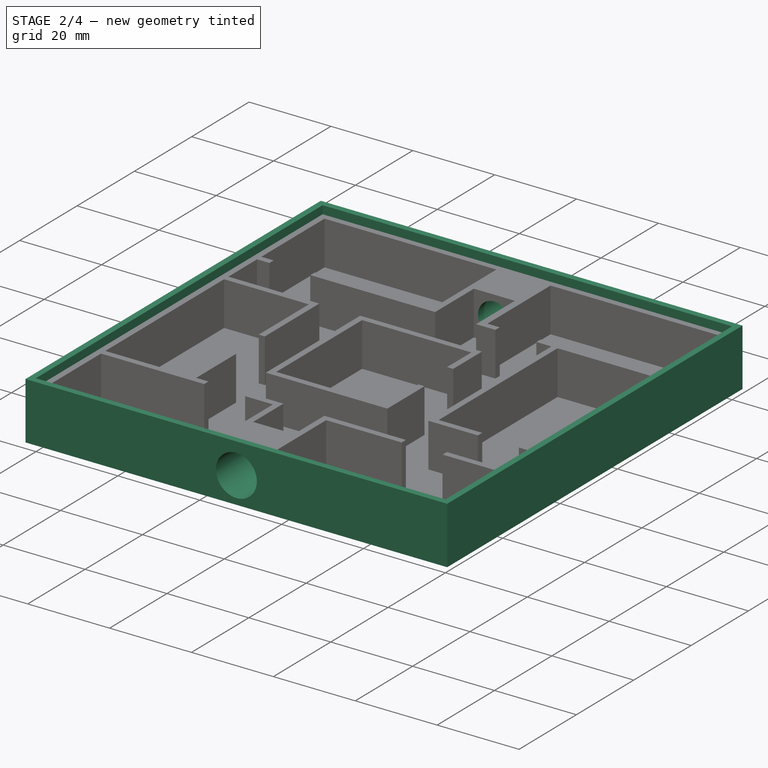
[diagram: stage 2 of 4 — iso view after this stage's code; geometry added in this stage tinted green]
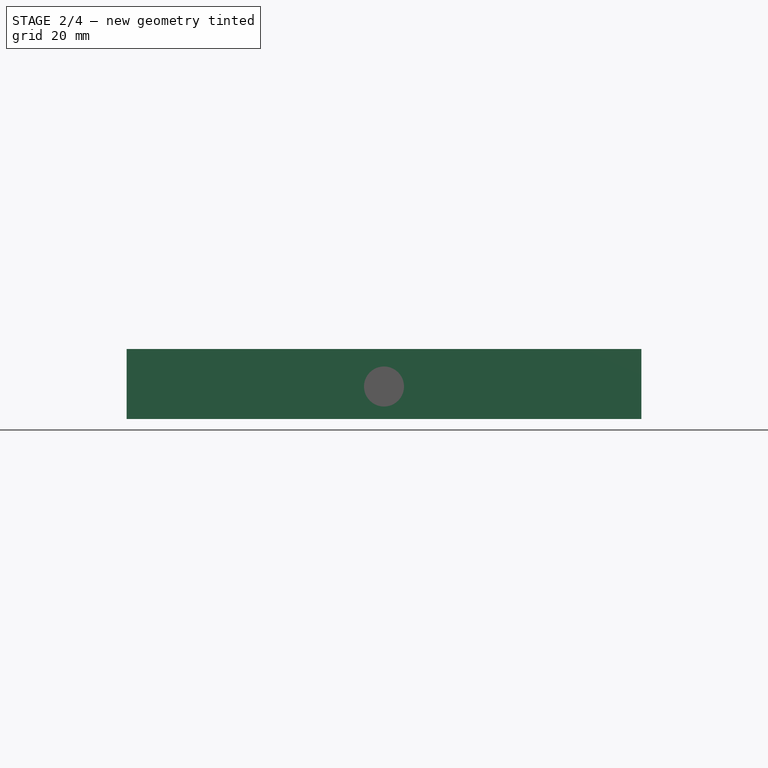
[diagram: stage 2 of 4 — front view after this stage's code; geometry added in this stage tinted green]
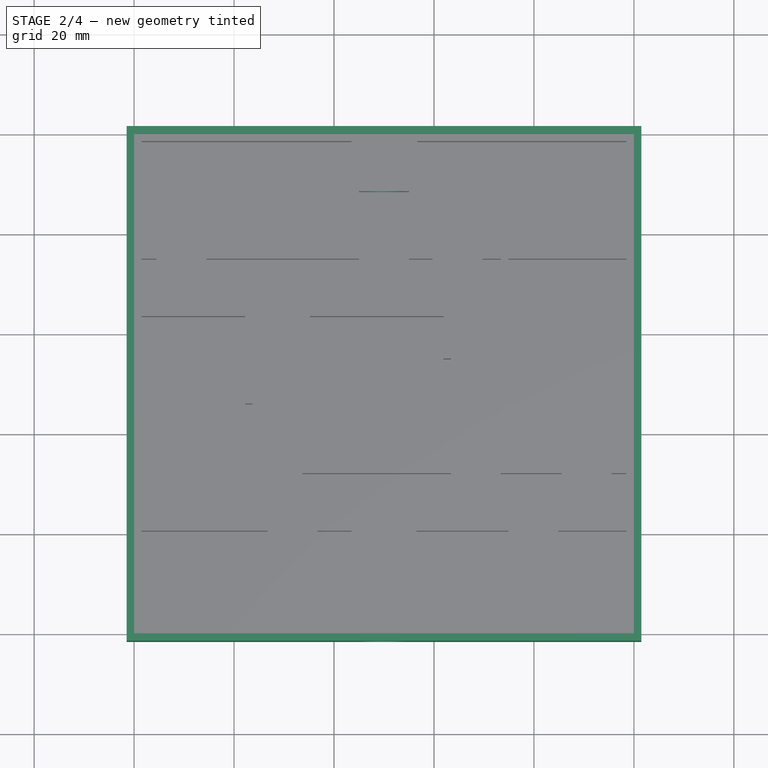
[diagram: stage 2 of 4 — top view after this stage's code; geometry added in this stage tinted green]
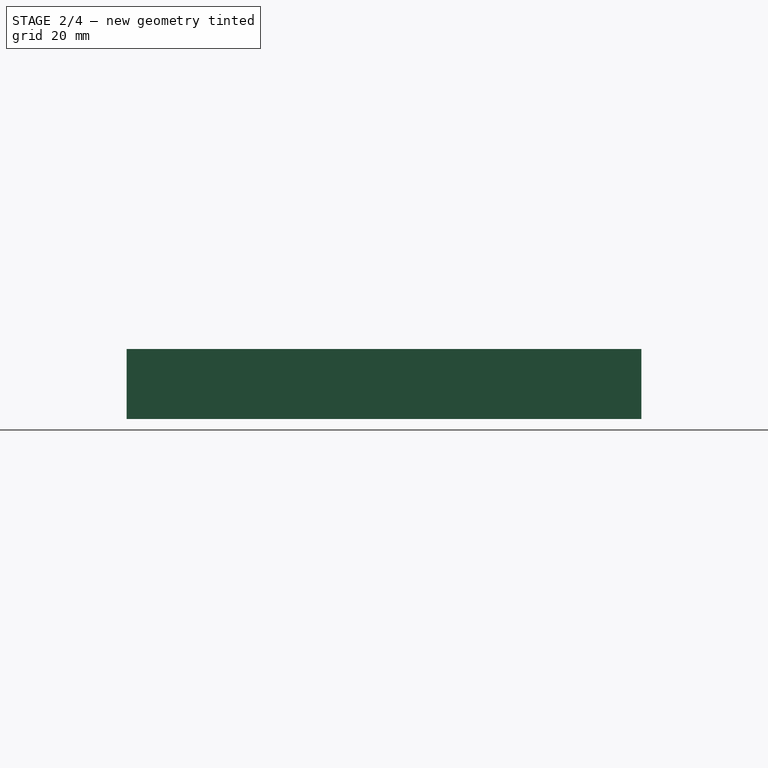
[diagram: stage 2 of 4 — right view after this stage's code; geometry added in this stage tinted green]
FEATURE [Sketcher::SketchObject] Sketch003
  ExternalGeometry = -> [Sketch]
  MapMode = 5
  Support = -> [XY_Plane]
  sketch-geometry (8):
    g0: LineSegment StartX=101.5 StartY=101.5 StartZ=0 EndX=-1.5 EndY=101.5 EndZ=0
    g1: LineSegment StartX=-1.5 StartY=101.5 StartZ=0 EndX=-1.5 EndY=-1.5 EndZ=0
    g2: LineSegment StartX=-1.5 StartY=-1.5 StartZ=0 EndX=101.5 EndY=-1.5 EndZ=0
    g3: LineSegment StartX=101.5 StartY=-1.5 StartZ=0 EndX=101.5 EndY=101.5 EndZ=0
    g4: LineSegment StartX=0 StartY=0 StartZ=0 EndX=100 EndY=0 EndZ=0
    g5: LineSegment StartX=100 StartY=0 StartZ=0 EndX=100 EndY=100 EndZ=0
    g6: LineSegment StartX=100 StartY=100 StartZ=0 EndX=0 EndY=100 EndZ=0
    g7: LineSegment StartX=0 StartY=100 StartZ=0 EndX=0 EndY=0 EndZ=0
  constraints (22):
    c: Coincident(g0,g1)
    c: Coincident(g1,g2)
    c: Coincident(g2,g3)
    c: Coincident(g3,g0)
    c: Horizontal(g0)
    c: Horizontal(g2)
    c: Vertical(g1)
    c: Vertical(g3)
    c: DistanceX(g1,g-1) = 1.5
    c: DistanceY(g1,g-1) = 1.5
    c: DistanceX(g-3,g2) = 1.5
    c: DistanceY(g-4,g0) = 1.5
    c: Coincident(g4,g5)
    c: Coincident(g5,g6)
    c: Coincident(g6,g7)
    c: Coincident(g7,g4)
    c: Horizontal(g4)
    c: Horizontal(g6)
    c: Vertical(g5)
    c: Vertical(g7)
    c: Coincident(g4,g-1)
    c: Coincident(g5,g-4)
FEATURE [PartDesign::Pad] Pad003  label="Rim"
  BaseFeature = -> Pad002
  Length = 14
  Length2 = 100
  Profile = -> Sketch003
  Type = 0
FEATURE [Sketcher::SketchObject] Sketch004
  MapMode = 5
  Placement = pos=(0,-1.5,0) rot=(1,0,0;1.5708rad)
  Support = -> [Pad003]
  sketch-geometry (4):
    g0: LineSegment [constr] StartX=-1.5 StartY=0 StartZ=0 EndX=50 EndY=0 EndZ=0
    g1: LineSegment [constr] StartX=50 StartY=0 StartZ=0 EndX=101.5 EndY=0 EndZ=0
    g2: LineSegment [constr] StartX=50 StartY=0 StartZ=0 EndX=50 EndY=6.5 EndZ=0
    g3: Circle CenterX=50 CenterY=6.5 CenterZ=0 NormalX=0 NormalY=0 NormalZ=1 AngleXU=0 Radius=2.91105
FEATURE [PartDesign::Hole] Hole  label="Connector hole 1"
  BaseFeature = -> Pad003
  Depth = 13
  DepthType = 0
  Diameter = 8
  DrillPoint = 0
  DrillPointAngle = 118
  HoleCutCountersinkAngle = 90
  HoleCutDepth = 11
  HoleCutDiameter = 10
  HoleCutType = 1
  ModelActualThread = false
  Profile = -> Sketch004
  Tapered = false
  TaperedAngle = 90
  ThreadAngle = 0
  ThreadClass = 0
  ThreadCutOffInner = 0
  ThreadCutOffOuter = 0
  ThreadDirection = 0
  ThreadFit = 0
  ThreadPitch = 0
  ThreadSize = 0
  ThreadType = 0
  Threaded = false
FEATURE [Sketcher::SketchObject] Sketch005
  MapMode = 5
  Placement = pos=(0,101.5,0) rot=(0,0.707107,0.707107;3.14159rad)
  Support = -> [Hole]
  sketch-geometry (4):
    g0: LineSegment [constr] StartX=-101.5 StartY=0 StartZ=0 EndX=-50 EndY=0 EndZ=0
    g1: LineSegment [constr] StartX=-50 StartY=0 StartZ=0 EndX=1.5 EndY=0 EndZ=0
    g2: LineSegment [constr] StartX=-50 StartY=0 StartZ=0 EndX=-50 EndY=6.5 EndZ=0
    g3: Circle CenterX=-50 CenterY=6.5 CenterZ=0 NormalX=0 NormalY=0 NormalZ=1 AngleXU=0 Radius=2.84316
FEATURE [PartDesign::Hole] Hole001  label="Connector hole 2"
  BaseFeature = -> Hole
  Depth = 13
  DepthType = 0
  Diameter = 8
  DrillPoint = 0
  DrillPointAngle = 118
  HoleCutCountersinkAngle = 90
  HoleCutDepth = 11
  HoleCutDiameter = 10
  HoleCutType = 1
  ModelActualThread = false
  Profile = -> Sketch005
  Tapered = false
  TaperedAngle = 90
  ThreadAngle = 0
  ThreadClass = 0
  ThreadCutOffInner = 0
  ThreadCutOffOuter = 0
  ThreadDirection = 0
  ThreadFit = 0
  ThreadPitch = 0
  ThreadSize = 0
  ThreadType = 0
  Threaded = false
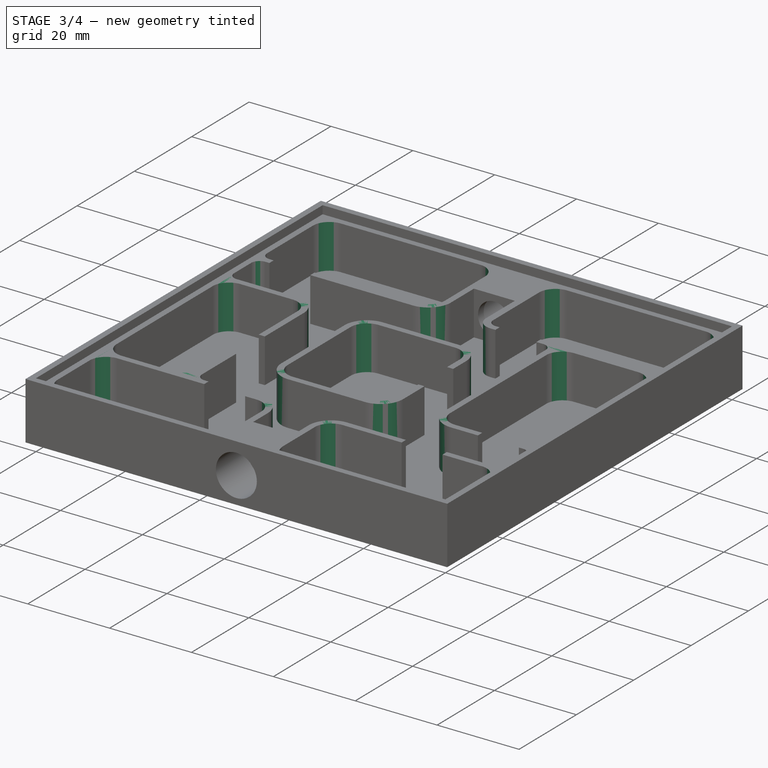
[diagram: stage 3 of 4 — iso view after this stage's code; geometry added in this stage tinted green]
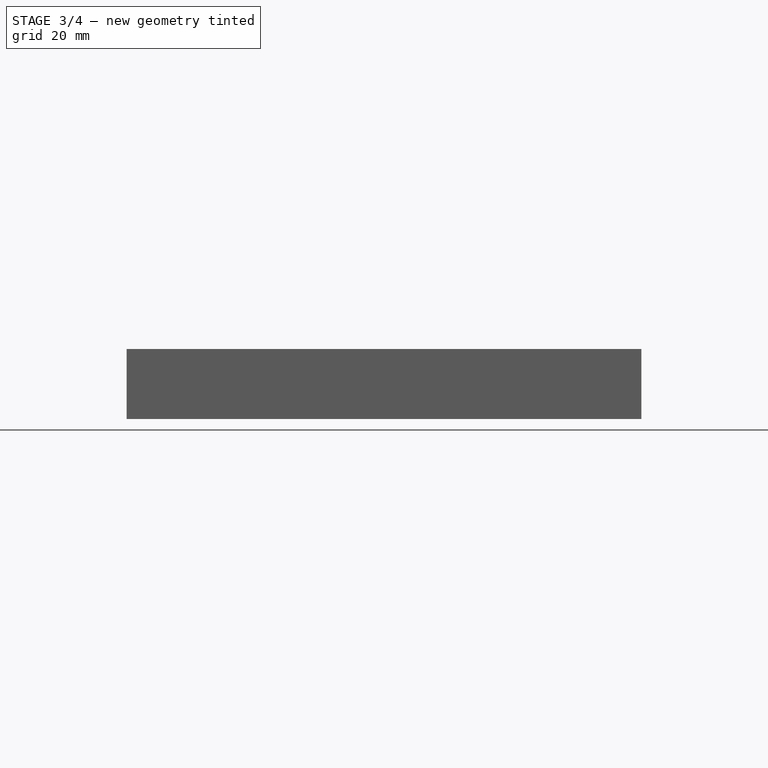
[diagram: stage 3 of 4 — front view after this stage's code; geometry added in this stage tinted green]
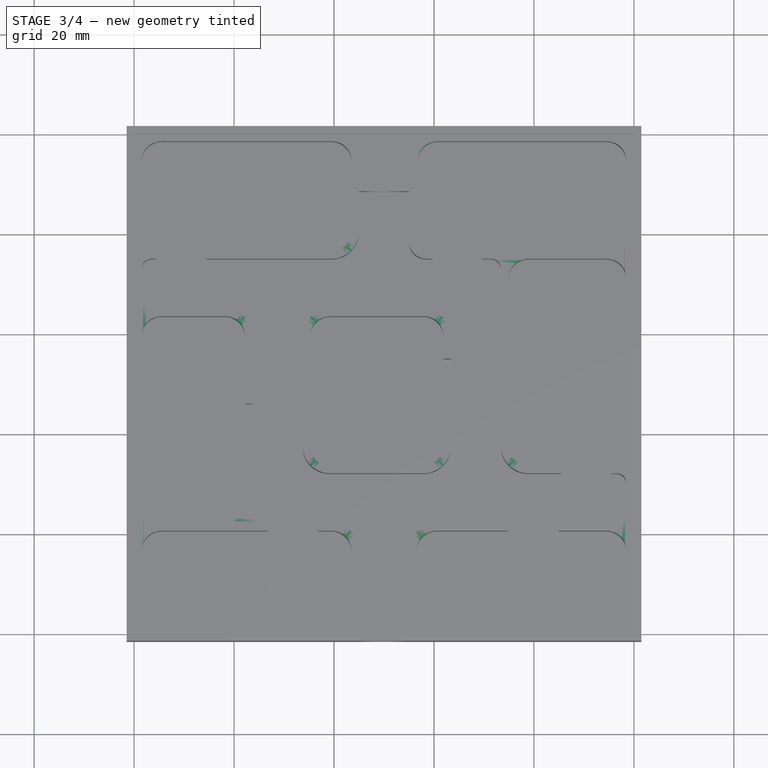
[diagram: stage 3 of 4 — top view after this stage's code; geometry added in this stage tinted green]
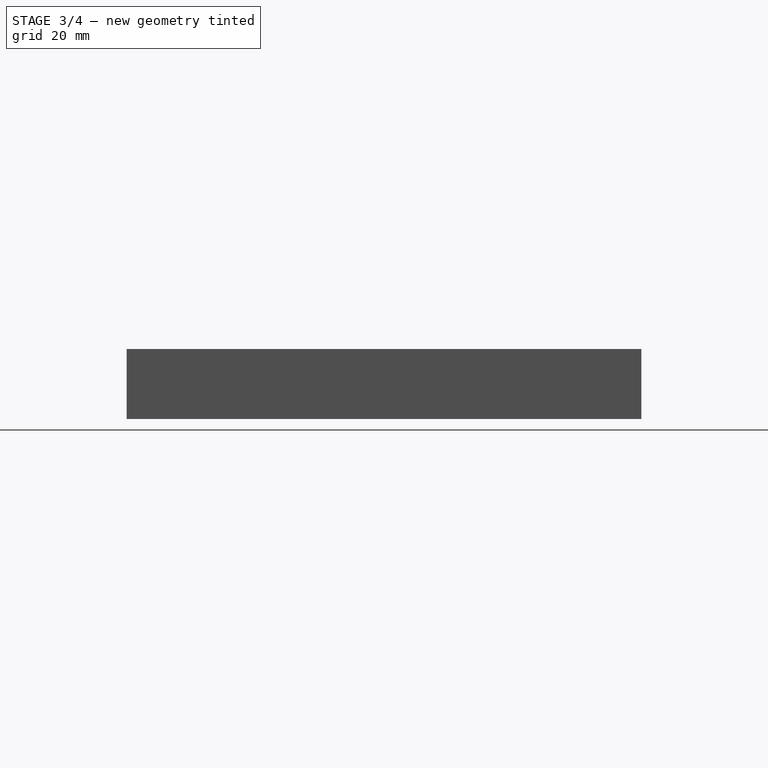
[diagram: stage 3 of 4 — right view after this stage's code; geometry added in this stage tinted green]
FEATURE [PartDesign::Fillet] Fillet  label="Large chamber corner"
  Base = -> Hole001 [Edge148,Edge216,Edge203,Edge180,Edge178,Edge207,Edge182,Edge196,Edge175,Edge222,Edge184,Edge205,Edge209,Edge164,Edge150,Edge177,Edge193,Edge173,Edge220,Edge191,Edge218,Edge152,Edge166,Edge161,Edge159]
  BaseFeature = -> Hole001
  Radius = 4
FEATURE [PartDesign::Fillet] Fillet001  label="Small chamber corner"
  Base = -> Fillet [Edge234,Edge247,Edge251,Edge194,Edge159,Edge103,Edge119,Edge115,Edge176]
  BaseFeature = -> Fillet
  Radius = 2
FEATURE [PartDesign::Fillet] Fillet002  label="Large chamber corner outer rad"
  Base = -> Fillet001 [Edge311,Edge251,Edge217,Edge265,Edge319,Edge145,Edge315,Edge142,Edge323]
  BaseFeature = -> Fillet001
  Radius = 5.5
FEATURE [PartDesign::Fillet] Fillet003  label="Small chamber corner outer rad"
  Base = -> Fillet002 [Edge202]
  BaseFeature = -> Fillet002
  Radius = 3.5
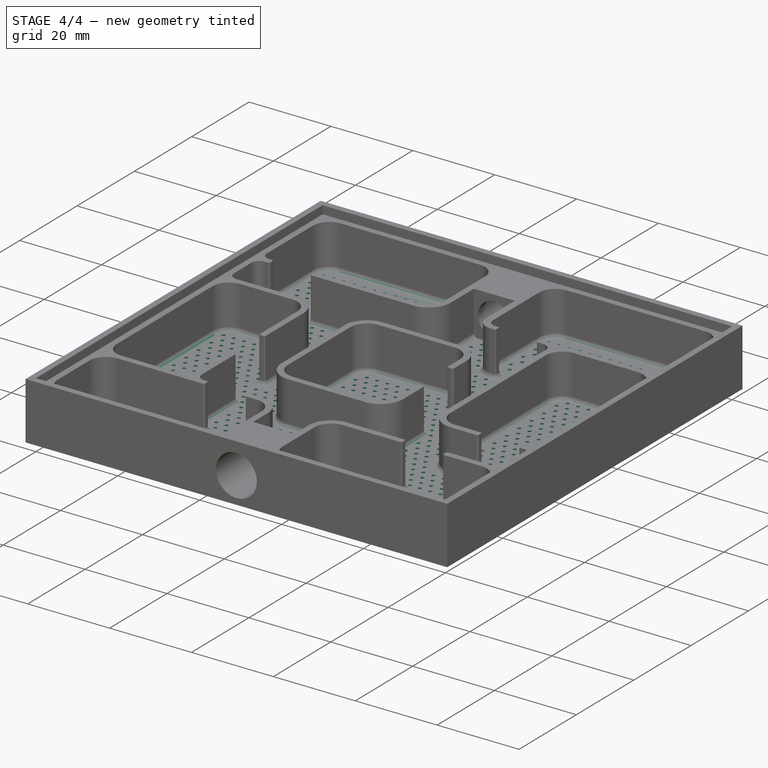
[diagram: stage 4 of 4 — iso view after this stage's code; geometry added in this stage tinted green]
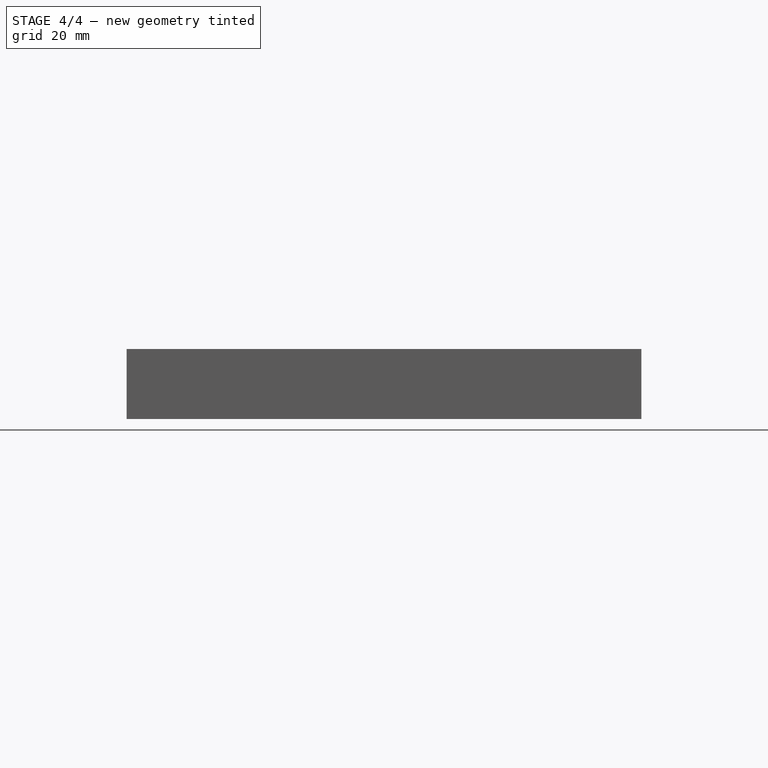
[diagram: stage 4 of 4 — front view after this stage's code; geometry added in this stage tinted green]
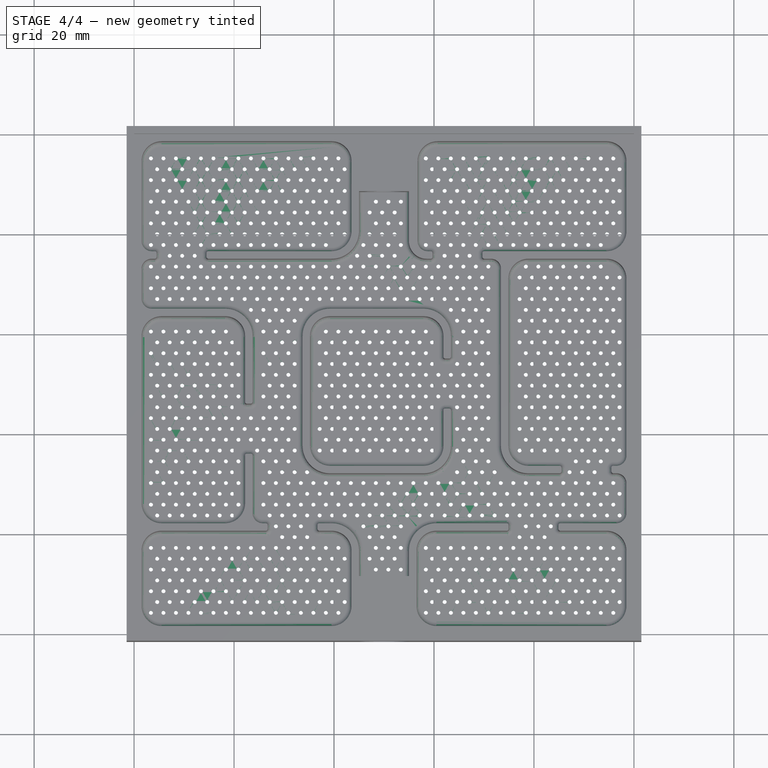
[diagram: stage 4 of 4 — top view after this stage's code; geometry added in this stage tinted green]
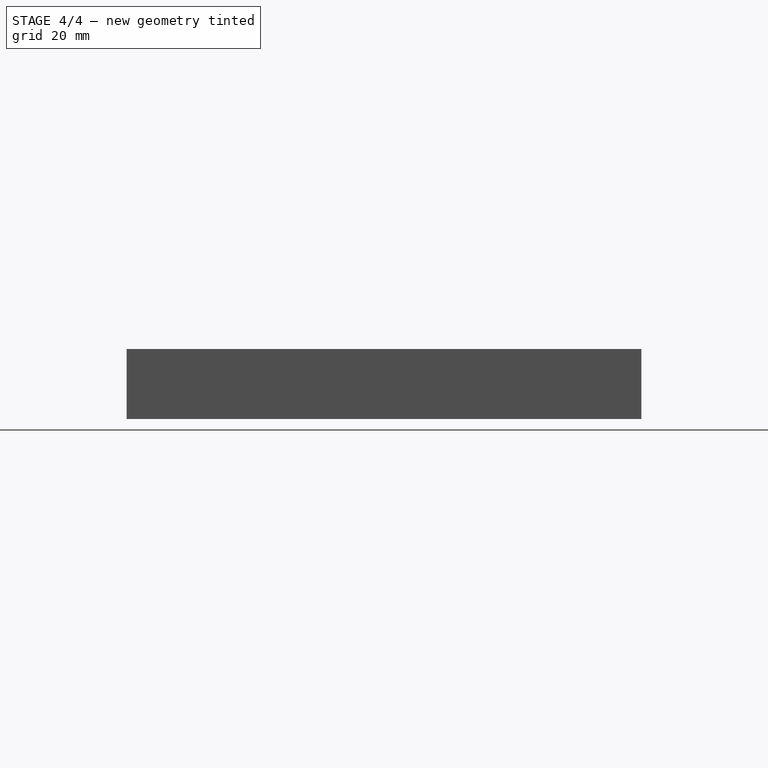
[diagram: stage 4 of 4 — right view after this stage's code; geometry added in this stage tinted green]
FEATURE [PartDesign::Fillet] Fillet004  label="Wall end"
  Base = -> Fillet003 [Edge297,Edge302,Edge271,Edge267,Edge193,Edge198,Edge183,Edge179,Edge129,Edge134,Edge359,Edge354,Edge215,Edge211,Edge311,Edge307,Edge257,Edge261,Edge233,Edge238,Edge169,Edge174,Edge143,Edge139,Edge324,Edge328,Edge251,Edge255]
  BaseFeature = -> Fillet003
  Radius = 0.35
FEATURE [PartDesign::Fillet] Fillet005
  Base = -> Fillet004 [Edge29,Edge16,Edge144]
  BaseFeature = -> Fillet004
  Radius = 1
FEATURE [Sketcher::SketchObject] Sketch006
  MapMode = 5
  Support = -> [XY_Plane]
  sketch-geometry (1309):
    g0: Circle CenterX=5.875 CenterY=95.2524 CenterZ=0 NormalX=0 NormalY=0 NormalZ=1 AngleXU=0 Radius=0.4
    g1: Circle CenterX=8.375 CenterY=95.2524 CenterZ=0 NormalX=0 NormalY=0 NormalZ=1 AngleXU=0 Radius=0.4
    g2: Circle CenterX=10.875 CenterY=95.2524 CenterZ=0 NormalX=0 NormalY=0 NormalZ=1 AngleXU=0 Radius=0.4
    g3: Circle CenterX=13.375 CenterY=95.2524 CenterZ=0 NormalX=0 NormalY=0 NormalZ=1 AngleXU=0 Radius=0.4
    g4: Circle CenterX=15.875 CenterY=95.2524 CenterZ=0 NormalX=0 NormalY=0 NormalZ=1 AngleXU=0 Radius=0.4
    g5: Circle CenterX=18.375 CenterY=95.2524 CenterZ=0 NormalX=0 NormalY=0 NormalZ=1 AngleXU=0 Radius=0.4
    g6: Circle CenterX=20.875 CenterY=95.2524 CenterZ=0 NormalX=0 NormalY=0 NormalZ=1 AngleXU=0 Radius=0.4
    g7: Circle CenterX=23.375 CenterY=95.2524 CenterZ=0 NormalX=0 NormalY=0 NormalZ=1 AngleXU=0 Radius=0.4
    g8: Circle CenterX=25.875 CenterY=95.2524 CenterZ=0 NormalX=0 NormalY=0 NormalZ=1 AngleXU=0 Radius=0.4
    g9: Circle CenterX=28.375 CenterY=95.2524 CenterZ=0 NormalX=0 NormalY=0 NormalZ=1 AngleXU=0 Radius=0.4
    g10: Circle CenterX=30.875 CenterY=95.2524 CenterZ=0 NormalX=0 NormalY=0 NormalZ=1 AngleXU=0 Radius=0.4
    g11: Circle CenterX=33.375 CenterY=95.2524 CenterZ=0 NormalX=0 NormalY=0 NormalZ=1 AngleXU=0 Radius=0.4
    g12: Circle CenterX=35.875 CenterY=95.2524 CenterZ=0 NormalX=0 NormalY=0 NormalZ=1 AngleXU=0 Radius=0.4
    g13: Circle CenterX=38.375 CenterY=95.2524 CenterZ=0 NormalX=0 NormalY=0 NormalZ=1 AngleXU=0 Radius=0.4
    g14: Circle CenterX=40.875 CenterY=95.2524 CenterZ=0 NormalX=0 NormalY=0 NormalZ=1 AngleXU=0 Radius=0.4
    g15: Circle CenterX=58.375 CenterY=95.2523 CenterZ=0 NormalX=0 NormalY=0 NormalZ=1 AngleXU=0 Radius=0.4
    g16: Circle CenterX=60.875 CenterY=95.2523 CenterZ=0 NormalX=0 NormalY=0 NormalZ=1 AngleXU=0 Radius=0.4
    g17: Circle CenterX=63.375 CenterY=95.2523 CenterZ=0 NormalX=0 NormalY=0 NormalZ=1 AngleXU=0 Radius=0.4
    g18: Circle CenterX=65.875 CenterY=95.2523 CenterZ=0 NormalX=0 NormalY=0 NormalZ=1 AngleXU=0 Radius=0.4
    g19: Circle CenterX=68.375 CenterY=95.2523 CenterZ=0 NormalX=0 NormalY=0 NormalZ=1 AngleXU=0 Radius=0.4
    g20: Circle CenterX=70.875 CenterY=95.2523 CenterZ=0 NormalX=0 NormalY=0 NormalZ=1 AngleXU=0 Radius=0.4
    g21: Circle CenterX=73.375 CenterY=95.2523 CenterZ=0 NormalX=0 NormalY=0 NormalZ=1 AngleXU=0 Radius=0.4
    g22: Circle CenterX=75.875 CenterY=95.2523 CenterZ=0 NormalX=0 NormalY=0 NormalZ=1 AngleXU=0 Radius=0.4
    g23: Circle CenterX=78.375 CenterY=95.2523 CenterZ=0 NormalX=0 NormalY=0 NormalZ=1 AngleXU=0 Radius=0.4
    g24: Circle CenterX=80.875 CenterY=95.2523 CenterZ=0 NormalX=0 NormalY=0 NormalZ=1 AngleXU=0 Radius=0.4
    g25: Circle CenterX=83.375 CenterY=95.2523 CenterZ=0 NormalX=0 NormalY=0 NormalZ=1 AngleXU=0 Radius=0.4
    g26: Circle CenterX=85.875 CenterY=95.2523 CenterZ=0 NormalX=0 NormalY=0 NormalZ=1 AngleXU=0 Radius=0.4
    g27: Circle CenterX=88.375 CenterY=95.2523 CenterZ=0 NormalX=0 NormalY=0 NormalZ=1 AngleXU=0 Radius=0.4
    g28: Circle CenterX=90.875 CenterY=95.2523 CenterZ=0 NormalX=0 NormalY=0 NormalZ=1 AngleXU=0 Radius=0.4
    g29: Circle CenterX=93.375 CenterY=95.2523 CenterZ=0 NormalX=0 NormalY=0 NormalZ=1 AngleXU=0 Radius=0.4
    g30: Circle CenterX=95.875 CenterY=95.2523 CenterZ=0 NormalX=0 NormalY=0 NormalZ=1 AngleXU=0 Radius=0.4
    g31: Circle CenterX=3.375 CenterY=95.2524 CenterZ=0 NormalX=0 NormalY=0 NormalZ=1 AngleXU=0 Radius=0.4
    g32: Circle CenterX=4.625 CenterY=93.0875 CenterZ=0 NormalX=0 NormalY=0 NormalZ=1 AngleXU=0 Radius=0.4
    g33: Circle CenterX=7.125 CenterY=93.0874 CenterZ=0 NormalX=0 NormalY=0 NormalZ=1 AngleXU=0 Radius=0.4
    g34: Circle CenterX=9.625 CenterY=93.0874 CenterZ=0 NormalX=0 NormalY=0 NormalZ=1 AngleXU=0 Radius=0.4
    g35: Circle CenterX=12.125 CenterY=93.0874 CenterZ=0 NormalX=0 NormalY=0 NormalZ=1 AngleXU=0 Radius=0.4
    g36: Circle CenterX=14.625 CenterY=93.0874 CenterZ=0 NormalX=0 NormalY=0 NormalZ=1 AngleXU=0 Radius=0.4
    g37: Circle CenterX=17.125 CenterY=93.0874 CenterZ=0 NormalX=0 NormalY=0 NormalZ=1 AngleXU=0 Radius=0.4
    g38: Circle CenterX=19.625 CenterY=93.0874 CenterZ=0 NormalX=0 NormalY=0 NormalZ=1 AngleXU=0 Radius=0.4
    g39: Circle CenterX=22.125 CenterY=93.0874 CenterZ=0 NormalX=0 NormalY=0 NormalZ=1 AngleXU=0 Radius=0.4
    g40: Circle CenterX=24.625 CenterY=93.0874 CenterZ=0 NormalX=0 NormalY=0 NormalZ=1 AngleXU=0 Radius=0.4
    g41: Circle CenterX=27.125 CenterY=93.0874 CenterZ=0 NormalX=0 NormalY=0 NormalZ=1 AngleXU=0 Radius=0.4
    g42: Circle CenterX=29.625 CenterY=93.0874 CenterZ=0 NormalX=0 NormalY=0 NormalZ=1 AngleXU=0 Radius=0.4
    g43: Circle CenterX=32.125 CenterY=93.0874 CenterZ=0 NormalX=0 NormalY=0 NormalZ=1 AngleXU=0 Radius=0.4
    g44: Circle CenterX=34.625 CenterY=93.0874 CenterZ=0 NormalX=0 NormalY=0 NormalZ=1 AngleXU=0 Radius=0.4
    g45: Circle CenterX=37.125 CenterY=93.0874 CenterZ=0 NormalX=0 NormalY=0 NormalZ=1 AngleXU=0 Radius=0.4
    g46: Circle CenterX=39.625 CenterY=93.0874 CenterZ=0 NormalX=0 NormalY=0 NormalZ=1 AngleXU=0 Radius=0.4
    g47: Circle CenterX=42.125 CenterY=93.0874 CenterZ=0 NormalX=0 NormalY=0 NormalZ=1 AngleXU=0 Radius=0.4
    g48: Circle CenterX=5.875 CenterY=90.9224 CenterZ=0 NormalX=0 NormalY=0 NormalZ=1 AngleXU=0 Radius=0.4
    g49: Circle CenterX=8.375 CenterY=90.9224 CenterZ=0 NormalX=0 NormalY=0 NormalZ=1 AngleXU=0 Radius=0.4
    g50: Circle CenterX=10.875 CenterY=90.9224 CenterZ=0 NormalX=0 NormalY=0 NormalZ=1 AngleXU=0 Radius=0.4
    g51: Circle CenterX=13.375 CenterY=90.9224 CenterZ=0 NormalX=0 NormalY=0 NormalZ=1 AngleXU=0 Radius=0.4
    g52: Circle CenterX=15.875 CenterY=90.9224 CenterZ=0 NormalX=0 NormalY=0 NormalZ=1 AngleXU=0 Radius=0.4
    g53: Circle CenterX=18.375 CenterY=90.9224 CenterZ=0 NormalX=0 NormalY=0 NormalZ=1 AngleXU=0 Radius=0.4
    g54: Circle CenterX=20.875 CenterY=90.9224 CenterZ=0 NormalX=0 NormalY=0 NormalZ=1 AngleXU=0 Radius=0.4
    g55: Circle CenterX=23.375 CenterY=90.9224 CenterZ=0 NormalX=0 NormalY=0 NormalZ=1 AngleXU=0 Radius=0.4
    g56: Circle CenterX=25.875 CenterY=90.9224 CenterZ=0 NormalX=0 NormalY=0 NormalZ=1 AngleXU=0 Radius=0.4
    g57: Circle CenterX=28.375 CenterY=90.9224 CenterZ=0 NormalX=0 NormalY=0 NormalZ=1 AngleXU=0 Radius=0.4
    g58: Circle CenterX=30.875 CenterY=90.9224 CenterZ=0 NormalX=0 NormalY=0 NormalZ=1 AngleXU=0 Radius=0.4
    g59: Circle CenterX=33.375 CenterY=90.9224 CenterZ=0 NormalX=0 NormalY=0 NormalZ=1 AngleXU=0 Radius=0.4
    g60: Circle CenterX=35.875 CenterY=90.9224 CenterZ=0 NormalX=0 NormalY=0 NormalZ=1 AngleXU=0 Radius=0.4
    g61: Circle CenterX=38.375 CenterY=90.9223 CenterZ=0 NormalX=0 NormalY=0 NormalZ=1 AngleXU=0 Radius=0.4
    g62: Circle CenterX=40.875 CenterY=90.9223 CenterZ=0 NormalX=0 NormalY=0 NormalZ=1 AngleXU=0 Radius=0.4
    g63: Circle CenterX=97.125 CenterY=93.0873 CenterZ=0 NormalX=0 NormalY=0 NormalZ=1 AngleXU=0 Radius=0.4
    g64: Circle CenterX=3.375 CenterY=90.9224 CenterZ=0 NormalX=0 NormalY=0 NormalZ=1 AngleXU=0 Radius=0.4
    g65: Circle CenterX=59.625 CenterY=93.0874 CenterZ=0 NormalX=0 NormalY=0 NormalZ=1 AngleXU=0 Radius=0.4
    g66: Circle CenterX=62.125 CenterY=93.0874 CenterZ=0 NormalX=0 NormalY=0 NormalZ=1 AngleXU=0 Radius=0.4
    g67: Circle CenterX=64.625 CenterY=93.0874 CenterZ=0 NormalX=0 NormalY=0 NormalZ=1 AngleXU=0 Radius=0.4
    g68: Circle CenterX=67.125 CenterY=93.0874 CenterZ=0 NormalX=0 NormalY=0 NormalZ=1 AngleXU=0 Radius=0.4
    g69: Circle CenterX=69.625 CenterY=93.0874 CenterZ=0 NormalX=0 NormalY=0 NormalZ=1 AngleXU=0 Radius=0.4
    g70: Circle CenterX=72.125 CenterY=93.0874 CenterZ=0 NormalX=0 NormalY=0 NormalZ=1 AngleXU=0 Radius=0.4
    g71: Circle CenterX=74.625 CenterY=93.0874 CenterZ=0 NormalX=0 NormalY=0 NormalZ=1 AngleXU=0 Radius=0.4
    g72: Circle CenterX=77.125 CenterY=93.0874 CenterZ=0 NormalX=0 NormalY=0 NormalZ=1 AngleXU=0 Radius=0.4
    g73: Circle CenterX=79.625 CenterY=93.0874 CenterZ=0 NormalX=0 NormalY=0 NormalZ=1 AngleXU=0 Radius=0.4
    g74: Circle CenterX=82.125 CenterY=93.0874 CenterZ=0 NormalX=0 NormalY=0 NormalZ=1 AngleXU=0 Radius=0.4
    g75: Circle CenterX=84.625 CenterY=93.0874 CenterZ=0 NormalX=0 NormalY=0 NormalZ=1 AngleXU=0 Radius=0.4
    g76: Circle CenterX=87.125 CenterY=93.0874 CenterZ=0 NormalX=0 NormalY=0 NormalZ=1 AngleXU=0 Radius=0.4
    g77: Circle CenterX=89.625 CenterY=93.0874 CenterZ=0 NormalX=0 NormalY=0 NormalZ=1 AngleXU=0 Radius=0.4
    g78: Circle CenterX=92.125 CenterY=93.0873 CenterZ=0 NormalX=0 NormalY=0 NormalZ=1 AngleXU=0 Radius=0.4
    g79: Circle CenterX=94.625 CenterY=93.0873 CenterZ=0 NormalX=0 NormalY=0 NormalZ=1 AngleXU=0 Radius=0.4
    g80: Circle CenterX=58.375 CenterY=90.9223 CenterZ=0 NormalX=0 NormalY=0 NormalZ=1 AngleXU=0 Radius=0.4
    g81: Circle CenterX=60.875 CenterY=90.9223 CenterZ=0 NormalX=0 NormalY=0 NormalZ=1 AngleXU=0 Radius=0.4
    g82: Circle CenterX=63.375 CenterY=90.9223 CenterZ=0 NormalX=0 NormalY=0 NormalZ=1 AngleXU=0 Radius=0.4
    g83: Circle CenterX=65.875 CenterY=90.9223 CenterZ=0 NormalX=0 NormalY=0 NormalZ=1 AngleXU=0 Radius=0.4
    g84: Circle CenterX=68.375 CenterY=90.9223 CenterZ=0 NormalX=0 NormalY=0 NormalZ=1 AngleXU=0 Radius=0.4
    g85: Circle CenterX=70.875 CenterY=90.9223 CenterZ=0 NormalX=0 NormalY=0 NormalZ=1 AngleXU=0 Radius=0.4
    g86: Circle CenterX=73.375 CenterY=90.9223 CenterZ=0 NormalX=0 NormalY=0 NormalZ=1 AngleXU=0 Radius=0.4
    g87: Circle CenterX=75.875 CenterY=90.9223 CenterZ=0 NormalX=0 NormalY=0 NormalZ=1 AngleXU=0 Radius=0.4
    g88: Circle CenterX=78.375 CenterY=90.9223 CenterZ=0 NormalX=0 NormalY=0 NormalZ=1 AngleXU=0 Radius=0.4
    g89: Circle CenterX=80.875 CenterY=90.9223 CenterZ=0 NormalX=0 NormalY=0 NormalZ=1 AngleXU=0 Radius=0.4
    g90: Circle CenterX=83.375 CenterY=90.9223 CenterZ=0 NormalX=0 NormalY=0 NormalZ=1 AngleXU=0 Radius=0.4
    g91: Circle CenterX=85.875 CenterY=90.9223 CenterZ=0 NormalX=0 NormalY=0 NormalZ=1 AngleXU=0 Radius=0.4
    g92: Circle CenterX=88.375 CenterY=90.9223 CenterZ=0 NormalX=0 NormalY=0 NormalZ=1 AngleXU=0 Radius=0.4
    g93: Circle CenterX=90.875 CenterY=90.9223 CenterZ=0 NormalX=0 NormalY=0 NormalZ=1 AngleXU=0 Radius=0.4
    g94: Circle CenterX=93.375 CenterY=90.9223 CenterZ=0 NormalX=0 NormalY=0 NormalZ=1 AngleXU=0 Radius=0.4
    g95: Circle CenterX=95.875 CenterY=90.9223 CenterZ=0 NormalX=0 NormalY=0 NormalZ=1 AngleXU=0 Radius=0.4
    g96: Circle [constr] CenterX=97.125 CenterY=93.0873 CenterZ=0 NormalX=0 NormalY=0 NormalZ=1 AngleXU=0 Radius=0.4
    g97: Circle CenterX=4.625 CenterY=88.7574 CenterZ=0 NormalX=0 NormalY=0 NormalZ=1 AngleXU=0 Radius=0.4
    g98: Circle CenterX=7.125 CenterY=88.7574 CenterZ=0 NormalX=0 NormalY=0 NormalZ=1 AngleXU=0 Radius=0.4
    g99: Circle CenterX=9.625 CenterY=88.7574 CenterZ=0 NormalX=0 NormalY=0 NormalZ=1 AngleXU=0 Radius=0.4
    g100: Circle CenterX=12.125 CenterY=88.7574 CenterZ=0 NormalX=0 NormalY=0 NormalZ=1 AngleXU=0 Radius=0.4
    g101: Circle CenterX=14.625 CenterY=88.7574 CenterZ=0 NormalX=0 NormalY=0 NormalZ=1 AngleXU=0 Radius=0.4
    g102: Circle CenterX=17.125 CenterY=88.7574 CenterZ=0 NormalX=0 NormalY=0 NormalZ=1 AngleXU=0 Radius=0.4
    g103: Circle CenterX=19.625 CenterY=88.7574 CenterZ=0 NormalX=0 NormalY=0 NormalZ=1 AngleXU=0 Radius=0.4
    g104: Circle CenterX=22.125 CenterY=88.7574 CenterZ=0 NormalX=0 NormalY=0 NormalZ=1 AngleXU=0 Radius=0.4
    g105: Circle CenterX=24.625 CenterY=88.7574 CenterZ=0 NormalX=0 NormalY=0 NormalZ=1 AngleXU=0 Radius=0.4
    g106: Circle CenterX=27.125 CenterY=88.7574 CenterZ=0 NormalX=0 NormalY=0 NormalZ=1 AngleXU=0 Radius=0.4
    g107: Circle CenterX=29.625 CenterY=88.7574 CenterZ=0 NormalX=0 NormalY=0 NormalZ=1 AngleXU=0 Radius=0.4
    g108: Circle CenterX=32.125 CenterY=88.7574 CenterZ=0 NormalX=0 NormalY=0 NormalZ=1 AngleXU=0 Radius=0.4
    g109: Circle CenterX=34.625 CenterY=88.7574 CenterZ=0 NormalX=0 NormalY=0 NormalZ=1 AngleXU=0 Radius=0.4
    g110: Circle CenterX=37.125 CenterY=88.7574 CenterZ=0 NormalX=0 NormalY=0 NormalZ=1 AngleXU=0 Radius=0.4
    g111: Circle CenterX=39.625 CenterY=88.7574 CenterZ=0 NormalX=0 NormalY=0 NormalZ=1 AngleXU=0 Radius=0.4
    g112: Circle CenterX=42.125 CenterY=88.7574 CenterZ=0 NormalX=0 NormalY=0 NormalZ=1 AngleXU=0 Radius=0.4
    g113: Circle CenterX=5.875 CenterY=86.5924 CenterZ=0 NormalX=0 NormalY=0 NormalZ=1 AngleXU=0 Radius=0.4
    g114: Circle CenterX=8.375 CenterY=86.5924 CenterZ=0 NormalX=0 NormalY=0 NormalZ=1 AngleXU=0 Radius=0.4
    g115: Circle CenterX=10.875 CenterY=86.5924 CenterZ=0 NormalX=0 NormalY=0 NormalZ=1 AngleXU=0 Radius=0.4
    g116: Circle CenterX=13.375 CenterY=86.5924 CenterZ=0 NormalX=0 NormalY=0 NormalZ=1 AngleXU=0 Radius=0.4
    g117: Circle CenterX=15.875 CenterY=86.5924 CenterZ=0 NormalX=0 NormalY=0 NormalZ=1 AngleXU=0 Radius=0.4
    g118: Circle CenterX=18.375 CenterY=86.5924 CenterZ=0 NormalX=0 NormalY=0 NormalZ=1 AngleXU=0 Radius=0.4
    g119: Circle CenterX=20.875 CenterY=86.5924 CenterZ=0 NormalX=0 NormalY=0 NormalZ=1 AngleXU=0 Radius=0.4
    g120: Circle CenterX=23.375 CenterY=86.5924 CenterZ=0 NormalX=0 NormalY=0 NormalZ=1 AngleXU=0 Radius=0.4
    g121: Circle CenterX=25.875 CenterY=86.5924 CenterZ=0 NormalX=0 NormalY=0 NormalZ=1 AngleXU=0 Radius=0.4
    g122: Circle CenterX=28.375 CenterY=86.5923 CenterZ=0 NormalX=0 NormalY=0 NormalZ=1 AngleXU=0 Radius=0.4
    g123: Circle CenterX=30.875 CenterY=86.5923 CenterZ=0 NormalX=0 NormalY=0 NormalZ=1 AngleXU=0 Radius=0.4
    g124: Circle CenterX=33.375 CenterY=86.5923 CenterZ=0 NormalX=0 NormalY=0 NormalZ=1 AngleXU=0 Radius=0.4
    g125: Circle CenterX=35.875 CenterY=86.5923 CenterZ=0 NormalX=0 NormalY=0 NormalZ=1 AngleXU=0 Radius=0.4
    g126: Circle CenterX=38.375 CenterY=86.5923 CenterZ=0 NormalX=0 NormalY=0 NormalZ=1 AngleXU=0 Radius=0.4
    g127: Circle CenterX=40.875 CenterY=86.5923 CenterZ=0 NormalX=0 NormalY=0 NormalZ=1 AngleXU=0 Radius=0.4
    g128: Circle CenterX=3.375 CenterY=86.5924 CenterZ=0 NormalX=0 NormalY=0 NormalZ=1 AngleXU=0 Radius=0.4
    g129: Circle CenterX=59.625 CenterY=88.7574 CenterZ=0 NormalX=0 NormalY=0 NormalZ=1 AngleXU=0 Radius=0.4
    g130: Circle CenterX=62.125 CenterY=88.7574 CenterZ=0 NormalX=0 NormalY=0 NormalZ=1 AngleXU=0 Radius=0.4
    g131: Circle CenterX=64.625 CenterY=88.7574 CenterZ=0 NormalX=0 NormalY=0 NormalZ=1 AngleXU=0 Radius=0.4
    g132: Circle CenterX=67.125 CenterY=88.7574 CenterZ=0 NormalX=0 NormalY=0 NormalZ=1 AngleXU=0 Radius=0.4
    g133: Circle CenterX=69.625 CenterY=88.7574 CenterZ=0 NormalX=0 NormalY=0 NormalZ=1 AngleXU=0 Radius=0.4
    g134: Circle CenterX=72.125 CenterY=88.7574 CenterZ=0 NormalX=0 NormalY=0 NormalZ=1 AngleXU=0 Radius=0.4
    g135: Circle CenterX=74.625 CenterY=88.7574 CenterZ=0 NormalX=0 NormalY=0 NormalZ=1 AngleXU=0 Radius=0.4
    g136: Circle CenterX=77.125 CenterY=88.7574 CenterZ=0 NormalX=0 NormalY=0 NormalZ=1 AngleXU=0 Radius=0.4
    g137: Circle CenterX=79.625 CenterY=88.7573 CenterZ=0 NormalX=0 NormalY=0 NormalZ=1 AngleXU=0 Radius=0.4
    g138: Circle CenterX=82.125 CenterY=88.7573 CenterZ=0 NormalX=0 NormalY=0 NormalZ=1 AngleXU=0 Radius=0.4
    g139: Circle CenterX=84.625 CenterY=88.7573 CenterZ=0 NormalX=0 NormalY=0 NormalZ=1 AngleXU=0 Radius=0.4
    g140: Circle CenterX=87.125 CenterY=88.7573 CenterZ=0 NormalX=0 NormalY=0 NormalZ=1 AngleXU=0 Radius=0.4
    g141: Circle CenterX=89.625 CenterY=88.7573 CenterZ=0 NormalX=0 NormalY=0 NormalZ=1 AngleXU=0 Radius=0.4
    g142: Circle CenterX=92.125 CenterY=88.7573 CenterZ=0 NormalX=0 NormalY=0 NormalZ=1 AngleXU=0 Radius=0.4
    g143: Circle CenterX=94.625 CenterY=88.7573 CenterZ=0 NormalX=0 NormalY=0 NormalZ=1 AngleXU=0 Radius=0.4
    g144: Circle CenterX=48.375 CenterY=86.5923 CenterZ=0 NormalX=0 NormalY=0 NormalZ=1 AngleXU=0 Radius=0.4
    g145: Circle CenterX=50.875 CenterY=86.5923 CenterZ=0 NormalX=0 NormalY=0 NormalZ=1 AngleXU=0 Radius=0.4
    g146: Circle CenterX=53.375 CenterY=86.5923 CenterZ=0 NormalX=0 NormalY=0 NormalZ=1 AngleXU=0 Radius=0.4
    g147: Circle CenterX=58.375 CenterY=86.5923 CenterZ=0 NormalX=0 NormalY=0 NormalZ=1 AngleXU=0 Radius=0.4
    g148: Circle CenterX=60.875 CenterY=86.5923 CenterZ=0 NormalX=0 NormalY=0 NormalZ=1 AngleXU=0 Radius=0.4
    g149: Circle CenterX=63.375 CenterY=86.5923 CenterZ=0 NormalX=0 NormalY=0 NormalZ=1 AngleXU=0 Radius=0.4
    g150: Circle CenterX=65.875 CenterY=86.5923 CenterZ=0 NormalX=0 NormalY=0 NormalZ=1 AngleXU=0 Radius=0.4
    g151: Circle CenterX=68.375 CenterY=86.5923 CenterZ=0 NormalX=0 NormalY=0 NormalZ=1 AngleXU=0 Radius=0.4
    g152: Circle CenterX=70.875 CenterY=86.5923 CenterZ=0 NormalX=0 NormalY=0 NormalZ=1 AngleXU=0 Radius=0.4
    g153: Circle CenterX=73.375 CenterY=86.5923 CenterZ=0 NormalX=0 NormalY=0 NormalZ=1 AngleXU=0 Radius=0.4
    g154: Circle CenterX=75.875 CenterY=86.5923 CenterZ=0 NormalX=0 NormalY=0 NormalZ=1 AngleXU=0 Radius=0.4
    g155: Circle CenterX=78.375 CenterY=86.5923 CenterZ=0 NormalX=0 NormalY=0 NormalZ=1 AngleXU=0 Radius=0.4
    g156: Circle CenterX=80.875 CenterY=86.5923 CenterZ=0 NormalX=0 NormalY=0 NormalZ=1 AngleXU=0 Radius=0.4
    g157: Circle CenterX=83.375 CenterY=86.5923 CenterZ=0 NormalX=0 NormalY=0 NormalZ=1 AngleXU=0 Radius=0.4
    g158: Circle CenterX=85.875 CenterY=86.5923 CenterZ=0 NormalX=0 NormalY=0 NormalZ=1 AngleXU=0 Radius=0.4
    g159: Circle CenterX=88.375 CenterY=86.5923 CenterZ=0 NormalX=0 NormalY=0 NormalZ=1 AngleXU=0 Radius=0.4
    g160: Circle CenterX=90.875 CenterY=86.5923 CenterZ=0 NormalX=0 NormalY=0 NormalZ=1 AngleXU=0 Radius=0.4
    g161: Circle CenterX=93.375 CenterY=86.5923 CenterZ=0 NormalX=0 NormalY=0 NormalZ=1 AngleXU=0 Radius=0.4
    g162: Circle CenterX=95.875 CenterY=86.5923 CenterZ=0 NormalX=0 NormalY=0 NormalZ=1 AngleXU=0 Radius=0.4
    g163: Circle CenterX=97.125 CenterY=88.7573 CenterZ=0 NormalX=0 NormalY=0 NormalZ=1 AngleXU=0 Radius=0.4
    g164: Circle CenterX=4.625 CenterY=84.4274 CenterZ=0 NormalX=0 NormalY=0 NormalZ=1 AngleXU=0 Radius=0.4
    g165: Circle CenterX=7.125 CenterY=84.4274 CenterZ=0 NormalX=0 NormalY=0 NormalZ=1 AngleXU=0 Radius=0.4
    g166: Circle CenterX=9.625 CenterY=84.4274 CenterZ=0 NormalX=0 NormalY=0 NormalZ=1 AngleXU=0 Radius=0.4
    g167: Circle CenterX=12.125 CenterY=84.4274 CenterZ=0 NormalX=0 NormalY=0 NormalZ=1 AngleXU=0 Radius=0.4
    g168: Circle CenterX=14.625 CenterY=84.4274 CenterZ=0 NormalX=0 NormalY=0 NormalZ=1 AngleXU=0 Radius=0.4
    g169: Circle CenterX=17.125 CenterY=84.4274 CenterZ=0 NormalX=0 NormalY=0 NormalZ=1 AngleXU=0 Radius=0.4
    g170: Circle CenterX=19.625 CenterY=84.4274 CenterZ=0 NormalX=0 NormalY=0 NormalZ=1 AngleXU=0 Radius=0.4
    g171: Circle CenterX=22.125 CenterY=84.4274 CenterZ=0 NormalX=0 NormalY=0 NormalZ=1 AngleXU=0 Radius=0.4
    g172: Circle CenterX=24.625 CenterY=84.4274 CenterZ=0 NormalX=0 NormalY=0 NormalZ=1 AngleXU=0 Radius=0.4
    g173: Circle CenterX=27.125 CenterY=84.4274 CenterZ=0 NormalX=0 NormalY=0 NormalZ=1 AngleXU=0 Radius=0.4
    g174: Circle CenterX=29.625 CenterY=84.4274 CenterZ=0 NormalX=0 NormalY=0 NormalZ=1 AngleXU=0 Radius=0.4
    g175: Circle CenterX=32.125 CenterY=84.4274 CenterZ=0 NormalX=0 NormalY=0 NormalZ=1 AngleXU=0 Radius=0.4
    g176: Circle CenterX=34.625 CenterY=84.4274 CenterZ=0 NormalX=0 NormalY=0 NormalZ=1 AngleXU=0 Radius=0.4
    g177: Circle CenterX=37.125 CenterY=84.4274 CenterZ=0 NormalX=0 NormalY=0 NormalZ=1 AngleXU=0 Radius=0.4
    g178: Circle CenterX=39.625 CenterY=84.4274 CenterZ=0 NormalX=0 NormalY=0 NormalZ=1 AngleXU=0 Radius=0.4
    g179: Circle CenterX=42.125 CenterY=84.4274 CenterZ=0 NormalX=0 NormalY=0 NormalZ=1 AngleXU=0 Radius=0.4
    g180: Circle CenterX=47.125 CenterY=84.4274 CenterZ=0 NormalX=0 NormalY=0 NormalZ=1 AngleXU=0 Radius=0.4
    g181: Circle CenterX=5.875 CenterY=82.2624 CenterZ=0 NormalX=0 NormalY=0 NormalZ=1 AngleXU=0 Radius=0.4
    g182: Circle CenterX=8.375 CenterY=82.2624 CenterZ=0 NormalX=0 NormalY=0 NormalZ=1 AngleXU=0 Radius=0.4
    g183: Circle CenterX=10.875 CenterY=82.2624 CenterZ=0 NormalX=0 NormalY=0 NormalZ=1 AngleXU=0 Radius=0.4
    g184: Circle CenterX=13.375 CenterY=82.2624 CenterZ=0 NormalX=0 NormalY=0 NormalZ=1 AngleXU=0 Radius=0.4
    g185: Circle CenterX=15.875 CenterY=82.2623 CenterZ=0 NormalX=0 NormalY=0 NormalZ=1 AngleXU=0 Radius=0.4
    g186: Circle CenterX=18.375 CenterY=82.2623 CenterZ=0 NormalX=0 NormalY=0 NormalZ=1 AngleXU=0 Radius=0.4
    g187: Circle CenterX=20.875 CenterY=82.2623 CenterZ=0 NormalX=0 NormalY=0 NormalZ=1 AngleXU=0 Radius=0.4
    g188: Circle CenterX=23.375 CenterY=82.2623 CenterZ=0 NormalX=0 NormalY=0 NormalZ=1 AngleXU=0 Radius=0.4
    g189: Circle CenterX=25.875 CenterY=82.2623 CenterZ=0 NormalX=0 NormalY=0 NormalZ=1 AngleXU=0 Radius=0.4
    g190: Circle CenterX=28.375 CenterY=82.2623 CenterZ=0 NormalX=0 NormalY=0 NormalZ=1 AngleXU=0 Radius=0.4
    g191: Circle CenterX=30.875 CenterY=82.2623 CenterZ=0 NormalX=0 NormalY=0 NormalZ=1 AngleXU=0 Radius=0.4
    g192: Circle CenterX=33.375 CenterY=82.2623 CenterZ=0 NormalX=0 NormalY=0 NormalZ=1 AngleXU=0 Radius=0.4
    g193: Circle CenterX=35.875 CenterY=82.2623 CenterZ=0 NormalX=0 NormalY=0 NormalZ=1 AngleXU=0 Radius=0.4
    g194: Circle CenterX=38.375 CenterY=82.2623 CenterZ=0 NormalX=0 NormalY=0 NormalZ=1 AngleXU=0 Radius=0.4
    g195: Circle CenterX=40.875 CenterY=82.2623 CenterZ=0 NormalX=0 NormalY=0 NormalZ=1 AngleXU=0 Radius=0.4
    g196: Circle CenterX=3.375 CenterY=82.2624 CenterZ=0 NormalX=0 NormalY=0 NormalZ=1 AngleXU=0 Radius=0.4
    g197: Circle CenterX=49.625 CenterY=84.4274 CenterZ=0 NormalX=0 NormalY=0 NormalZ=1 AngleXU=0 Radius=0.4
    g198: Circle CenterX=52.125 CenterY=84.4274 CenterZ=0 NormalX=0 NormalY=0 NormalZ=1 AngleXU=0 Radius=0.4
    g199: Circle CenterX=59.625 CenterY=84.4274 CenterZ=0 NormalX=0 NormalY=0 NormalZ=1 AngleXU=0 Radius=0.4
    g200: Circle CenterX=62.125 CenterY=84.4274 CenterZ=0 NormalX=0 NormalY=0 NormalZ=1 AngleXU=0 Radius=0.4
    g201: Circle CenterX=64.625 CenterY=84.4274 CenterZ=0 NormalX=0 NormalY=0 NormalZ=1 AngleXU=0 Radius=0.4
    g202: Circle CenterX=67.125 CenterY=84.4274 CenterZ=0 NormalX=0 NormalY=0 NormalZ=1 AngleXU=0 Radius=0.4
    g203: Circle CenterX=69.625 CenterY=84.4273 CenterZ=0 NormalX=0 NormalY=0 NormalZ=1 AngleXU=0 Radius=0.4
    g204: Circle CenterX=72.125 CenterY=84.4273 CenterZ=0 NormalX=0 NormalY=0 NormalZ=1 AngleXU=0 Radius=0.4
    g205: Circle CenterX=74.625 CenterY=84.4273 CenterZ=0 NormalX=0 NormalY=0 NormalZ=1 AngleXU=0 Radius=0.4
    g206: Circle CenterX=77.125 CenterY=84.4273 CenterZ=0 NormalX=0 NormalY=0 NormalZ=1 AngleXU=0 Radius=0.4
    g207: Circle CenterX=79.625 CenterY=84.4273 CenterZ=0 NormalX=0 NormalY=0 NormalZ=1 AngleXU=0 Radius=0.4
    g208: Circle CenterX=82.125 CenterY=84.4273 CenterZ=0 NormalX=0 NormalY=0 NormalZ=1 AngleXU=0 Radius=0.4
    g209: Circle CenterX=84.625 CenterY=84.4273 CenterZ=0 NormalX=0 NormalY=0 NormalZ=1 AngleXU=0 Radius=0.4
    g210: Circle CenterX=87.125 CenterY=84.4273 CenterZ=0 NormalX=0 NormalY=0 NormalZ=1 AngleXU=0 Radius=0.4
    g211: Circle CenterX=89.625 CenterY=84.4273 CenterZ=0 NormalX=0 NormalY=0 NormalZ=1 AngleXU=0 Radius=0.4
    g212: Circle CenterX=92.125 CenterY=84.4273 CenterZ=0 NormalX=0 NormalY=0 NormalZ=1 AngleXU=0 Radius=0.4
    g213: Circle CenterX=94.625 CenterY=84.4273 CenterZ=0 NormalX=0 NormalY=0 NormalZ=1 AngleXU=0 Radius=0.4
    g214: Circle CenterX=48.375 CenterY=82.2623 CenterZ=0 NormalX=0 NormalY=0 NormalZ=1 AngleXU=0 Radius=0.4
    g215: Circle CenterX=50.875 CenterY=82.2623 CenterZ=0 NormalX=0 NormalY=0 NormalZ=1 AngleXU=0 Radius=0.4
    g216: Circle CenterX=53.375 CenterY=82.2623 CenterZ=0 NormalX=0 NormalY=0 NormalZ=1 AngleXU=0 Radius=0.4
    g217: Circle CenterX=58.375 CenterY=82.2623 CenterZ=0 NormalX=0 NormalY=0 NormalZ=1 AngleXU=0 Radius=0.4
    g218: Circle CenterX=60.875 CenterY=82.2623 CenterZ=0 NormalX=0 NormalY=0 NormalZ=1 AngleXU=0 Radius=0.4
    g219: Circle CenterX=63.375 CenterY=82.2623 CenterZ=0 NormalX=0 NormalY=0 NormalZ=1 AngleXU=0 Radius=0.4
    g220: Circle CenterX=65.875 CenterY=82.2623 CenterZ=0 NormalX=0 NormalY=0 NormalZ=1 AngleXU=0 Radius=0.4
    g221: Circle CenterX=68.375 CenterY=82.2623 CenterZ=0 NormalX=0 NormalY=0 NormalZ=1 AngleXU=0 Radius=0.4
    g222: Circle CenterX=70.875 CenterY=82.2623 CenterZ=0 NormalX=0 NormalY=0 NormalZ=1 AngleXU=0 Radius=0.4
    g223: Circle CenterX=73.375 CenterY=82.2623 CenterZ=0 NormalX=0 NormalY=0 NormalZ=1 AngleXU=0 Radius=0.4
    g224: Circle CenterX=75.875 CenterY=82.2623 CenterZ=0 NormalX=0 NormalY=0 NormalZ=1 AngleXU=0 Radius=0.4
    g225: Circle CenterX=78.375 CenterY=82.2623 CenterZ=0 NormalX=0 NormalY=0 NormalZ=1 AngleXU=0 Radius=0.4
    g226: Circle CenterX=80.875 CenterY=82.2623 CenterZ=0 NormalX=0 NormalY=0 NormalZ=1 AngleXU=0 Radius=0.4
    g227: Circle CenterX=83.375 CenterY=82.2623 CenterZ=0 NormalX=0 NormalY=0 NormalZ=1 AngleXU=0 Radius=0.4
    g228: Circle CenterX=85.875 CenterY=82.2623 CenterZ=0 NormalX=0 NormalY=0 NormalZ=1 AngleXU=0 Radius=0.4
    g229: Circle CenterX=88.375 CenterY=82.2623 CenterZ=0 NormalX=0 NormalY=0 NormalZ=1 AngleXU=0 Radius=0.4
    g230: Circle CenterX=90.875 CenterY=82.2623 CenterZ=0 NormalX=0 NormalY=0 NormalZ=1 AngleXU=0 Radius=0.4
    g231: Circle CenterX=93.375 CenterY=82.2623 CenterZ=0 NormalX=0 NormalY=0 NormalZ=1 AngleXU=0 Radius=0.4
    g232: Circle CenterX=95.875 CenterY=82.2623 CenterZ=0 NormalX=0 NormalY=0 NormalZ=1 AngleXU=0 Radius=0.4
    g233: Circle CenterX=97.125 CenterY=84.4273 CenterZ=0 NormalX=0 NormalY=0 NormalZ=1 AngleXU=0 Radius=0.4
    g234: Circle CenterX=4.625 CenterY=80.0974 CenterZ=0 NormalX=0 NormalY=0 NormalZ=1 AngleXU=0 Radius=0.4
    g235: Circle CenterX=7.125 CenterY=80.0974 CenterZ=0 NormalX=0 NormalY=0 NormalZ=1 AngleXU=0 Radius=0.4
    g236: Circle CenterX=9.625 CenterY=80.0974 CenterZ=0 NormalX=0 NormalY=0 NormalZ=1 AngleXU=0 Radius=0.4
    g237: Circle CenterX=12.125 CenterY=80.0974 CenterZ=0 NormalX=0 NormalY=0 NormalZ=1 AngleXU=0 Radius=0.4
    g238: Circle CenterX=14.625 CenterY=80.0974 CenterZ=0 NormalX=0 NormalY=0 NormalZ=1 AngleXU=0 Radius=0.4
    g239: Circle CenterX=17.125 CenterY=80.0974 CenterZ=0 NormalX=0 NormalY=0 NormalZ=1 AngleXU=0 Radius=0.4
    g240: Circle CenterX=19.625 CenterY=80.0974 CenterZ=0 NormalX=0 NormalY=0 NormalZ=1 AngleXU=0 Radius=0.4
    g241: Circle CenterX=22.125 CenterY=80.0974 CenterZ=0 NormalX=0 NormalY=0 NormalZ=1 AngleXU=0 Radius=0.4
    g242: Circle CenterX=24.625 CenterY=80.0974 CenterZ=0 NormalX=0 NormalY=0 NormalZ=1 AngleXU=0 Radius=0.4
    g243: Circle CenterX=27.125 CenterY=80.0974 CenterZ=0 NormalX=0 NormalY=0 NormalZ=1 AngleXU=0 Radius=0.4
    g244: Circle CenterX=29.625 CenterY=80.0974 CenterZ=0 NormalX=0 NormalY=0 NormalZ=1 AngleXU=0 Radius=0.4
    g245: Circle CenterX=32.125 CenterY=80.0974 CenterZ=0 NormalX=0 NormalY=0 NormalZ=1 AngleXU=0 Radius=0.4
    g246: Circle CenterX=34.625 CenterY=80.0974 CenterZ=0 NormalX=0 NormalY=0 NormalZ=1 AngleXU=0 Radius=0.4
    g247: Circle CenterX=37.125 CenterY=80.0974 CenterZ=0 NormalX=0 NormalY=0 NormalZ=1 AngleXU=0 Radius=0.4
    g248: Circle CenterX=39.625 CenterY=80.0974 CenterZ=0 NormalX=0 NormalY=0 NormalZ=1 AngleXU=0 Radius=0.4
    g249: Circle CenterX=42.125 CenterY=80.0974 CenterZ=0 NormalX=0 NormalY=0 NormalZ=1 AngleXU=0 Radius=0.4
    g250: Circle CenterX=47.125 CenterY=80.0974 CenterZ=0 NormalX=0 NormalY=0 NormalZ=1 AngleXU=0 Radius=0.4
    g251: Circle CenterX=5.875 CenterY=77.9323 CenterZ=0 NormalX=0 NormalY=0 NormalZ=1 AngleXU=0 Radius=0.4
    g252: Circle CenterX=8.375 CenterY=77.9323 CenterZ=0 NormalX=0 NormalY=0 NormalZ=1 AngleXU=0 Radius=0.4
    g253: Circle CenterX=10.875 CenterY=77.9323 CenterZ=0 NormalX=0 NormalY=0 NormalZ=1 AngleXU=0 Radius=0.4
    g254: Circle CenterX=13.375 CenterY=77.9323 CenterZ=0 NormalX=0 NormalY=0 NormalZ=1 AngleXU=0 Radius=0.4
    g255: Circle CenterX=15.875 CenterY=77.9323 CenterZ=0 NormalX=0 NormalY=0 NormalZ=1 AngleXU=0 Radius=0.4
    g256: Circle CenterX=18.375 CenterY=77.9323 CenterZ=0 NormalX=0 NormalY=0 NormalZ=1 AngleXU=0 Radius=0.4
    g257: Circle CenterX=20.875 CenterY=77.9323 CenterZ=0 NormalX=0 NormalY=0 NormalZ=1 AngleXU=0 Radius=0.4
    g258: Circle CenterX=23.375 CenterY=77.9323 CenterZ=0 NormalX=0 NormalY=0 NormalZ=1 AngleXU=0 Radius=0.4
    g259: Circle CenterX=25.875 CenterY=77.9323 CenterZ=0 NormalX=0 NormalY=0 NormalZ=1 AngleXU=0 Radius=0.4
    g260: Circle CenterX=28.375 CenterY=77.9323 CenterZ=0 NormalX=0 NormalY=0 NormalZ=1 AngleXU=0 Radius=0.4
    g261: Circle CenterX=30.875 CenterY=77.9323 CenterZ=0 NormalX=0 NormalY=0 NormalZ=1 AngleXU=0 Radius=0.4
    g262: Circle CenterX=33.375 CenterY=77.9323 CenterZ=0 NormalX=0 NormalY=0 NormalZ=1 AngleXU=0 Radius=0.4
    g263: Circle CenterX=35.875 CenterY=77.9323 CenterZ=0 NormalX=0 NormalY=0 NormalZ=1 AngleXU=0 Radius=0.4
    g264: Circle CenterX=38.375 CenterY=77.9323 CenterZ=0 NormalX=0 NormalY=0 NormalZ=1 AngleXU=0 Radius=0.4
    g265: Circle CenterX=45.875 CenterY=77.9323 CenterZ=0 NormalX=0 NormalY=0 NormalZ=1 AngleXU=0 Radius=0.4
    g266: Circle CenterX=3.375 CenterY=77.9324 CenterZ=0 NormalX=0 NormalY=0 NormalZ=1 AngleXU=0 Radius=0.4
    g267: Circle CenterX=49.625 CenterY=80.0974 CenterZ=0 NormalX=0 NormalY=0 NormalZ=1 AngleXU=0 Radius=0.4
    g268: Circle CenterX=52.125 CenterY=80.0974 CenterZ=0 NormalX=0 NormalY=0 NormalZ=1 AngleXU=0 Radius=0.4
    g269: Circle CenterX=59.625 CenterY=80.0973 CenterZ=0 NormalX=0 NormalY=0 NormalZ=1 AngleXU=0 Radius=0.4
    g270: Circle CenterX=62.125 CenterY=80.0973 CenterZ=0 NormalX=0 NormalY=0 NormalZ=1 AngleXU=0 Radius=0.4
    g271: Circle CenterX=64.625 CenterY=80.0973 CenterZ=0 NormalX=0 NormalY=0 NormalZ=1 AngleXU=0 Radius=0.4
    g272: Circle CenterX=67.125 CenterY=80.0973 CenterZ=0 NormalX=0 NormalY=0 NormalZ=1 AngleXU=0 Radius=0.4
    g273: Circle CenterX=69.625 CenterY=80.0973 CenterZ=0 NormalX=0 NormalY=0 NormalZ=1 AngleXU=0 Radius=0.4
    g274: Circle CenterX=72.125 CenterY=80.0973 CenterZ=0 NormalX=0 NormalY=0 NormalZ=1 AngleXU=0 Radius=0.4
    g275: Circle CenterX=74.625 CenterY=80.0973 CenterZ=0 NormalX=0 NormalY=0 NormalZ=1 AngleXU=0 Radius=0.4
    g276: Circle CenterX=77.125 CenterY=80.0973 CenterZ=0 NormalX=0 NormalY=0 NormalZ=1 AngleXU=0 Radius=0.4
    g277: Circle CenterX=79.625 CenterY=80.0973 CenterZ=0 NormalX=0 NormalY=0 NormalZ=1 AngleXU=0 Radius=0.4
    g278: Circle CenterX=82.125 CenterY=80.0973 CenterZ=0 NormalX=0 NormalY=0 NormalZ=1 AngleXU=0 Radius=0.4
    g279: Circle CenterX=84.625 CenterY=80.0973 CenterZ=0 NormalX=0 NormalY=0 NormalZ=1 AngleXU=0 Radius=0.4
    g280: Circle CenterX=87.125 CenterY=80.0973 CenterZ=0 NormalX=0 NormalY=0 NormalZ=1 AngleXU=0 Radius=0.4
    g281: Circle CenterX=89.625 CenterY=80.0973 CenterZ=0 NormalX=0 NormalY=0 NormalZ=1 AngleXU=0 Radius=0.4
    g282: Circle CenterX=92.125 CenterY=80.0973 CenterZ=0 NormalX=0 NormalY=0 NormalZ=1 AngleXU=0 Radius=0.4
    g283: Circle CenterX=94.625 CenterY=80.0973 CenterZ=0 NormalX=0 NormalY=0 NormalZ=1 AngleXU=0 Radius=0.4
    g284: Circle CenterX=48.375 CenterY=77.9323 CenterZ=0 NormalX=0 NormalY=0 NormalZ=1 AngleXU=0 Radius=0.4
    g285: Circle CenterX=50.875 CenterY=77.9323 CenterZ=0 NormalX=0 NormalY=0 NormalZ=1 AngleXU=0 Radius=0.4
    g286: Circle CenterX=53.375 CenterY=77.9323 CenterZ=0 NormalX=0 NormalY=0 NormalZ=1 AngleXU=0 Radius=0.4
    g287: Circle CenterX=58.375 CenterY=77.9323 CenterZ=0 NormalX=0 NormalY=0 NormalZ=1 AngleXU=0 Radius=0.4
    g288: Circle CenterX=60.875 CenterY=77.9323 CenterZ=0 NormalX=0 NormalY=0 NormalZ=1 AngleXU=0 Radius=0.4
    g289: Circle CenterX=63.375 CenterY=77.9323 CenterZ=0 NormalX=0 NormalY=0 NormalZ=1 AngleXU=0 Radius=0.4
    g290: Circle CenterX=65.875 CenterY=77.9323 CenterZ=0 NormalX=0 NormalY=0 NormalZ=1 AngleXU=0 Radius=0.4
    g291: Circle CenterX=68.375 CenterY=77.9323 CenterZ=0 NormalX=0 NormalY=0 NormalZ=1 AngleXU=0 Radius=0.4
    g292: Circle CenterX=70.875 CenterY=77.9323 CenterZ=0 NormalX=0 NormalY=0 NormalZ=1 AngleXU=0 Radius=0.4
    g293: Circle CenterX=73.375 CenterY=77.9323 CenterZ=0 NormalX=0 NormalY=0 NormalZ=1 AngleXU=0 Radius=0.4
    g294: Circle CenterX=75.875 CenterY=77.9323 CenterZ=0 NormalX=0 NormalY=0 NormalZ=1 AngleXU=0 Radius=0.4
    g295: Circle CenterX=78.375 CenterY=77.9323 CenterZ=0 NormalX=0 NormalY=0 NormalZ=1 AngleXU=0 Radius=0.4
    g296: Circle CenterX=80.875 CenterY=77.9323 CenterZ=0 NormalX=0 NormalY=0 NormalZ=1 AngleXU=0 Radius=0.4
    g297: Circle CenterX=83.375 CenterY=77.9323 CenterZ=0 NormalX=0 NormalY=0 NormalZ=1 AngleXU=0 Radius=0.4
    g298: Circle CenterX=85.875 CenterY=77.9323 CenterZ=0 NormalX=0 NormalY=0 NormalZ=1 AngleXU=0 Radius=0.4
    g299: Circle CenterX=88.375 CenterY=77.9322 CenterZ=0 NormalX=0 NormalY=0 NormalZ=1 AngleXU=0 Radius=0.4
    g300: Circle CenterX=90.875 CenterY=77.9322 CenterZ=0 NormalX=0 NormalY=0 NormalZ=1 AngleXU=0 Radius=0.4
    g301: Circle CenterX=93.375 CenterY=77.9322 CenterZ=0 NormalX=0 NormalY=0 NormalZ=1 AngleXU=0 Radius=0.4
    g302: Circle CenterX=97.125 CenterY=80.0973 CenterZ=0 NormalX=0 NormalY=0 NormalZ=1 AngleXU=0 Radius=0.4
    g303: Circle CenterX=7.125 CenterY=75.7674 CenterZ=0 NormalX=0 NormalY=0 NormalZ=1 AngleXU=0 Radius=0.4
    g304: Circle CenterX=9.625 CenterY=75.7674 CenterZ=0 NormalX=0 NormalY=0 NormalZ=1 AngleXU=0 Radius=0.4
    g305: Circle CenterX=12.125 CenterY=75.7674 CenterZ=0 NormalX=0 NormalY=0 NormalZ=1 AngleXU=0 Radius=0.4
    g306: Circle CenterX=44.625 CenterY=75.7674 CenterZ=0 NormalX=0 NormalY=0 NormalZ=1 AngleXU=0 Radius=0.4
    g307: Circle CenterX=47.125 CenterY=75.7673 CenterZ=0 NormalX=0 NormalY=0 NormalZ=1 AngleXU=0 Radius=0.4
    g308: Circle CenterX=5.875 CenterY=73.6023 CenterZ=0 NormalX=0 NormalY=0 NormalZ=1 AngleXU=0 Radius=0.4
    g309: Circle CenterX=8.375 CenterY=73.6023 CenterZ=0 NormalX=0 NormalY=0 NormalZ=1 AngleXU=0 Radius=0.4
    g310: Circle CenterX=10.875 CenterY=73.6023 CenterZ=0 NormalX=0 NormalY=0 NormalZ=1 AngleXU=0 Radius=0.4
    g311: Circle CenterX=13.375 CenterY=73.6023 CenterZ=0 NormalX=0 NormalY=0 NormalZ=1 AngleXU=0 Radius=0.4
    g312: Circle CenterX=15.875 CenterY=73.6023 CenterZ=0 NormalX=0 NormalY=0 NormalZ=1 AngleXU=0 Radius=0.4
    g313: Circle CenterX=18.375 CenterY=73.6023 CenterZ=0 NormalX=0 NormalY=0 NormalZ=1 AngleXU=0 Radius=0.4
    g314: Circle CenterX=20.875 CenterY=73.6023 CenterZ=0 NormalX=0 NormalY=0 NormalZ=1 AngleXU=0 Radius=0.4
    g315: Circle CenterX=23.375 CenterY=73.6023 CenterZ=0 NormalX=0 NormalY=0 NormalZ=1 AngleXU=0 Radius=0.4
    g316: Circle CenterX=25.875 CenterY=73.6023 CenterZ=0 NormalX=0 NormalY=0 NormalZ=1 AngleXU=0 Radius=0.4
    g317: Circle CenterX=28.375 CenterY=73.6023 CenterZ=0 NormalX=0 NormalY=0 NormalZ=1 AngleXU=0 Radius=0.4
    g318: Circle CenterX=30.875 CenterY=73.6023 CenterZ=0 NormalX=0 NormalY=0 NormalZ=1 AngleXU=0 Radius=0.4
    g319: Circle CenterX=33.375 CenterY=73.6023 CenterZ=0 NormalX=0 NormalY=0 NormalZ=1 AngleXU=0 Radius=0.4
    g320: Circle CenterX=35.875 CenterY=73.6023 CenterZ=0 NormalX=0 NormalY=0 NormalZ=1 AngleXU=0 Radius=0.4
    g321: Circle CenterX=38.375 CenterY=73.6023 CenterZ=0 NormalX=0 NormalY=0 NormalZ=1 AngleXU=0 Radius=0.4
    g322: Circle CenterX=40.875 CenterY=73.6023 CenterZ=0 NormalX=0 NormalY=0 NormalZ=1 AngleXU=0 Radius=0.4
    g323: Circle CenterX=43.375 CenterY=73.6023 CenterZ=0 NormalX=0 NormalY=0 NormalZ=1 AngleXU=0 Radius=0.4
    g324: Circle CenterX=45.875 CenterY=73.6023 CenterZ=0 NormalX=0 NormalY=0 NormalZ=1 AngleXU=0 Radius=0.4
    g325: Circle CenterX=3.375 CenterY=73.6023 CenterZ=0 NormalX=0 NormalY=0 NormalZ=1 AngleXU=0 Radius=0.4
    g326: Circle CenterX=49.625 CenterY=75.7673 CenterZ=0 NormalX=0 NormalY=0 NormalZ=1 AngleXU=0 Radius=0.4
    g327: Circle CenterX=52.125 CenterY=75.7673 CenterZ=0 NormalX=0 NormalY=0 NormalZ=1 AngleXU=0 Radius=0.4
    g328: Circle CenterX=62.125 CenterY=75.7673 CenterZ=0 NormalX=0 NormalY=0 NormalZ=1 AngleXU=0 Radius=0.4
    g329: Circle CenterX=64.625 CenterY=75.7673 CenterZ=0 NormalX=0 NormalY=0 NormalZ=1 AngleXU=0 Radius=0.4
    g330: Circle CenterX=67.125 CenterY=75.7673 CenterZ=0 NormalX=0 NormalY=0 NormalZ=1 AngleXU=0 Radius=0.4
    g331: Circle CenterX=48.375 CenterY=73.6023 CenterZ=0 NormalX=0 NormalY=0 NormalZ=1 AngleXU=0 Radius=0.4
    g332: Circle CenterX=50.875 CenterY=73.6023 CenterZ=0 NormalX=0 NormalY=0 NormalZ=1 AngleXU=0 Radius=0.4
    g333: Circle CenterX=53.375 CenterY=73.6023 CenterZ=0 NormalX=0 NormalY=0 NormalZ=1 AngleXU=0 Radius=0.4
    g334: Circle CenterX=55.875 CenterY=73.6023 CenterZ=0 NormalX=0 NormalY=0 NormalZ=1 AngleXU=0 Radius=0.4
    g335: Circle CenterX=58.375 CenterY=73.6023 CenterZ=0 NormalX=0 NormalY=0 NormalZ=1 AngleXU=0 Radius=0.4
    g336: Circle CenterX=60.875 CenterY=73.6023 CenterZ=0 NormalX=0 NormalY=0 NormalZ=1 AngleXU=0 Radius=0.4
    g337: Circle CenterX=63.375 CenterY=73.6023 CenterZ=0 NormalX=0 NormalY=0 NormalZ=1 AngleXU=0 Radius=0.4
    g338: Circle CenterX=65.875 CenterY=73.6023 CenterZ=0 NormalX=0 NormalY=0 NormalZ=1 AngleXU=0 Radius=0.4
    g339: Circle CenterX=68.375 CenterY=73.6023 CenterZ=0 NormalX=0 NormalY=0 NormalZ=1 AngleXU=0 Radius=0.4
    g340: Circle CenterX=70.875 CenterY=73.6023 CenterZ=0 NormalX=0 NormalY=0 NormalZ=1 AngleXU=0 Radius=0.4
    g341: Circle CenterX=78.375 CenterY=73.6022 CenterZ=0 NormalX=0 NormalY=0 NormalZ=1 AngleXU=0 Radius=0.4
    g342: Circle CenterX=80.875 CenterY=73.6022 CenterZ=0 NormalX=0 NormalY=0 NormalZ=1 AngleXU=0 Radius=0.4
    g343: Circle CenterX=83.375 CenterY=73.6022 CenterZ=0 NormalX=0 NormalY=0 NormalZ=1 AngleXU=0 Radius=0.4
    g344: Circle CenterX=85.875 CenterY=73.6022 CenterZ=0 NormalX=0 NormalY=0 NormalZ=1 AngleXU=0 Radius=0.4
    g345: Circle CenterX=88.375 CenterY=73.6022 CenterZ=0 NormalX=0 NormalY=0 NormalZ=1 AngleXU=0 Radius=0.4
    g346: Circle CenterX=90.875 CenterY=73.6022 CenterZ=0 NormalX=0 NormalY=0 NormalZ=1 AngleXU=0 Radius=0.4
    g347: Circle CenterX=93.375 CenterY=73.6022 CenterZ=0 NormalX=0 NormalY=0 NormalZ=1 AngleXU=0 Radius=0.4
    g348: Circle CenterX=4.625 CenterY=71.4374 CenterZ=0 NormalX=0 NormalY=0 NormalZ=1 AngleXU=0 Radius=0.4
    g349: Circle CenterX=7.125 CenterY=71.4374 CenterZ=0 NormalX=0 NormalY=0 NormalZ=1 AngleXU=0 Radius=0.4
    g350: Circle CenterX=9.625 CenterY=71.4374 CenterZ=0 NormalX=0 NormalY=0 NormalZ=1 AngleXU=0 Radius=0.4
    g351: Circle CenterX=12.125 CenterY=71.4374 CenterZ=0 NormalX=0 NormalY=0 NormalZ=1 AngleXU=0 Radius=0.4
    g352: Circle CenterX=14.625 CenterY=71.4374 CenterZ=0 NormalX=0 NormalY=0 NormalZ=1 AngleXU=0 Radius=0.4
    g353: Circle CenterX=17.125 CenterY=71.4374 CenterZ=0 NormalX=0 NormalY=0 NormalZ=1 AngleXU=0 Radius=0.4
    g354: Circle CenterX=19.625 CenterY=71.4374 CenterZ=0 NormalX=0 NormalY=0 NormalZ=1 AngleXU=0 Radius=0.4
    g355: Circle CenterX=22.125 CenterY=71.4374 CenterZ=0 NormalX=0 NormalY=0 NormalZ=1 AngleXU=0 Radius=0.4
    g356: Circle CenterX=24.625 CenterY=71.4374 CenterZ=0 NormalX=0 NormalY=0 NormalZ=1 AngleXU=0 Radius=0.4
    g357: Circle CenterX=27.125 CenterY=71.4374 CenterZ=0 NormalX=0 NormalY=0 NormalZ=1 AngleXU=0 Radius=0.4
    g358: Circle CenterX=29.625 CenterY=71.4374 CenterZ=0 NormalX=0 NormalY=0 NormalZ=1 AngleXU=0 Radius=0.4
    g359: Circle CenterX=32.125 CenterY=71.4374 CenterZ=0 NormalX=0 NormalY=0 NormalZ=1 AngleXU=0 Radius=0.4
    g360: Circle CenterX=34.625 CenterY=71.4374 CenterZ=0 NormalX=0 NormalY=0 NormalZ=1 AngleXU=0 Radius=0.4
    g361: Circle CenterX=37.125 CenterY=71.4373 CenterZ=0 NormalX=0 NormalY=0 NormalZ=1 AngleXU=0 Radius=0.4
    g362: Circle CenterX=39.625 CenterY=71.4373 CenterZ=0 NormalX=0 NormalY=0 NormalZ=1 AngleXU=0 Radius=0.4
    g363: Circle CenterX=42.125 CenterY=71.4373 CenterZ=0 NormalX=0 NormalY=0 NormalZ=1 AngleXU=0 Radius=0.4
    g364: Circle CenterX=44.625 CenterY=71.4373 CenterZ=0 NormalX=0 NormalY=0 NormalZ=1 AngleXU=0 Radius=0.4
    g365: Circle CenterX=47.125 CenterY=71.4373 CenterZ=0 NormalX=0 NormalY=0 NormalZ=1 AngleXU=0 Radius=0.4
    g366: Circle CenterX=5.875 CenterY=69.2723 CenterZ=0 NormalX=0 NormalY=0 NormalZ=1 AngleXU=0 Radius=0.4
    g367: Circle CenterX=8.375 CenterY=69.2723 CenterZ=0 NormalX=0 NormalY=0 NormalZ=1 AngleXU=0 Radius=0.4
    g368: Circle CenterX=10.875 CenterY=69.2723 CenterZ=0 NormalX=0 NormalY=0 NormalZ=1 AngleXU=0 Radius=0.4
    g369: Circle CenterX=13.375 CenterY=69.2723 CenterZ=0 NormalX=0 NormalY=0 NormalZ=1 AngleXU=0 Radius=0.4
    g370: Circle CenterX=15.875 CenterY=69.2723 CenterZ=0 NormalX=0 NormalY=0 NormalZ=1 AngleXU=0 Radius=0.4
    g371: Circle CenterX=18.375 CenterY=69.2723 CenterZ=0 NormalX=0 NormalY=0 NormalZ=1 AngleXU=0 Radius=0.4
    g372: Circle CenterX=20.875 CenterY=69.2723 CenterZ=0 NormalX=0 NormalY=0 NormalZ=1 AngleXU=0 Radius=0.4
    g373: Circle CenterX=23.375 CenterY=69.2723 CenterZ=0 NormalX=0 NormalY=0 NormalZ=1 AngleXU=0 Radius=0.4
    g374: Circle CenterX=25.875 CenterY=69.2723 CenterZ=0 NormalX=0 NormalY=0 NormalZ=1 AngleXU=0 Radius=0.4
    g375: Circle CenterX=28.375 CenterY=69.2723 CenterZ=0 NormalX=0 NormalY=0 NormalZ=1 AngleXU=0 Radius=0.4
    g376: Circle CenterX=30.875 CenterY=69.2723 CenterZ=0 NormalX=0 NormalY=0 NormalZ=1 AngleXU=0 Radius=0.4
    g377: Circle CenterX=33.375 CenterY=69.2723 CenterZ=0 NormalX=0 NormalY=0 NormalZ=1 AngleXU=0 Radius=0.4
    g378: Circle CenterX=35.875 CenterY=69.2723 CenterZ=0 NormalX=0 NormalY=0 NormalZ=1 AngleXU=0 Radius=0.4
    g379: Circle CenterX=38.375 CenterY=69.2723 CenterZ=0 NormalX=0 NormalY=0 NormalZ=1 AngleXU=0 Radius=0.4
    g380: Circle CenterX=40.875 CenterY=69.2723 CenterZ=0 NormalX=0 NormalY=0 NormalZ=1 AngleXU=0 Radius=0.4
    g381: Circle CenterX=43.375 CenterY=69.2723 CenterZ=0 NormalX=0 NormalY=0 NormalZ=1 AngleXU=0 Radius=0.4
    g382: Circle CenterX=45.875 CenterY=69.2723 CenterZ=0 NormalX=0 NormalY=0 NormalZ=1 AngleXU=0 Radius=0.4
    g383: Circle CenterX=3.375 CenterY=69.2723 CenterZ=0 NormalX=0 NormalY=0 NormalZ=1 AngleXU=0 Radius=0.4
    g384: Circle CenterX=49.625 CenterY=71.4373 CenterZ=0 NormalX=0 NormalY=0 NormalZ=1 AngleXU=0 Radius=0.4
    g385: Circle CenterX=52.125 CenterY=71.4373 CenterZ=0 NormalX=0 NormalY=0 NormalZ=1 AngleXU=0 Radius=0.4
    g386: Circle CenterX=54.625 CenterY=71.4373 CenterZ=0 NormalX=0 NormalY=0 NormalZ=1 AngleXU=0 Radius=0.4
    g387: Circle CenterX=57.125 CenterY=71.4373 CenterZ=0 NormalX=0 NormalY=0 NormalZ=1 AngleXU=0 Radius=0.4
    g388: Circle CenterX=59.625 CenterY=71.4373 CenterZ=0 NormalX=0 NormalY=0 NormalZ=1 AngleXU=0 Radius=0.4
    g389: Circle CenterX=62.125 CenterY=71.4373 CenterZ=0 NormalX=0 NormalY=0 NormalZ=1 AngleXU=0 Radius=0.4
    g390: Circle CenterX=64.625 CenterY=71.4373 CenterZ=0 NormalX=0 NormalY=0 NormalZ=1 AngleXU=0 Radius=0.4
    g391: Circle CenterX=67.125 CenterY=71.4373 CenterZ=0 NormalX=0 NormalY=0 NormalZ=1 AngleXU=0 Radius=0.4
    g392: Circle CenterX=69.625 CenterY=71.4373 CenterZ=0 NormalX=0 NormalY=0 NormalZ=1 AngleXU=0 Radius=0.4
    g393: Circle CenterX=77.125 CenterY=71.4373 CenterZ=0 NormalX=0 NormalY=0 NormalZ=1 AngleXU=0 Radius=0.4
    g394: Circle CenterX=79.625 CenterY=71.4373 CenterZ=0 NormalX=0 NormalY=0 NormalZ=1 AngleXU=0 Radius=0.4
    g395: Circle CenterX=82.125 CenterY=71.4373 CenterZ=0 NormalX=0 NormalY=0 NormalZ=1 AngleXU=0 Radius=0.4
    g396: Circle CenterX=84.625 CenterY=71.4373 CenterZ=0 NormalX=0 NormalY=0 NormalZ=1 AngleXU=0 Radius=0.4
    g397: Circle CenterX=87.125 CenterY=71.4373 CenterZ=0 NormalX=0 NormalY=0 NormalZ=1 AngleXU=0 Radius=0.4
    g398: Circle CenterX=89.625 CenterY=71.4373 CenterZ=0 NormalX=0 NormalY=0 NormalZ=1 AngleXU=0 Radius=0.4
    g399: Circle CenterX=92.125 CenterY=71.4373 CenterZ=0 NormalX=0 NormalY=0 NormalZ=1 AngleXU=0 Radius=0.4
    ... +909 more geometry lines
FEATURE [PartDesign::Pocket] Pocket
  BaseFeature = -> Fillet005
  Length = 50
  Length2 = 100
  Profile = -> Sketch006
  Reversed = true
  Type = 0
FEATURE [PartDesign::Body] Body
  Group = -> [Sketch,Pad,Sketch001,Pad001,Sketch002,Pad002,Sketch003,Pad003,Sketch004,Hole,Sketch005,Hole001,Fillet,Fillet001,Fillet002,Fillet003,Fillet004,Fillet005,Sketch006,Pocket]
  Origin = -> Origin
  Tip = -> Pocket
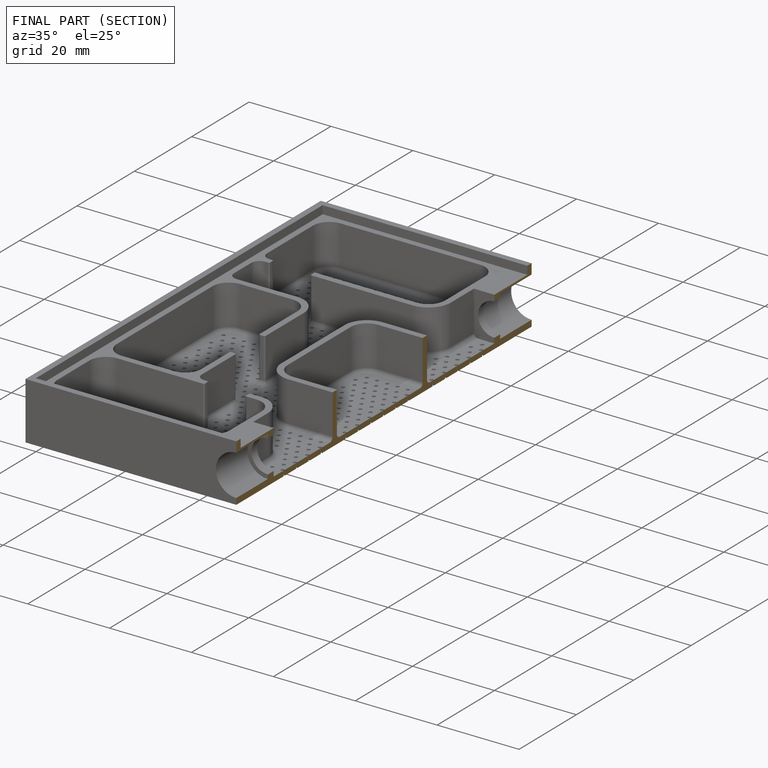
[diagram: finished part — half-section view (interior)]
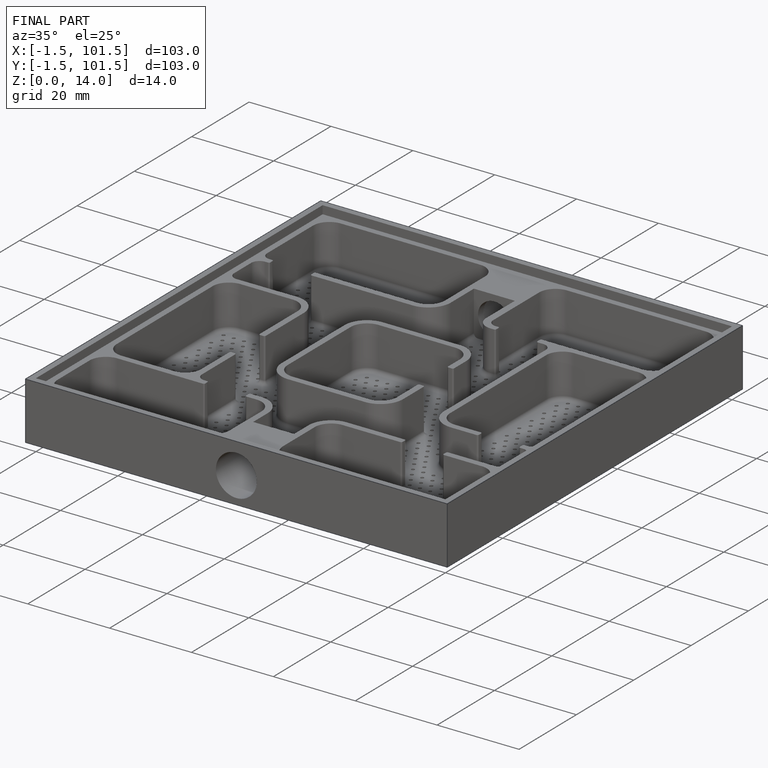
[diagram: finished part — iso view with bounding-box wireframe]
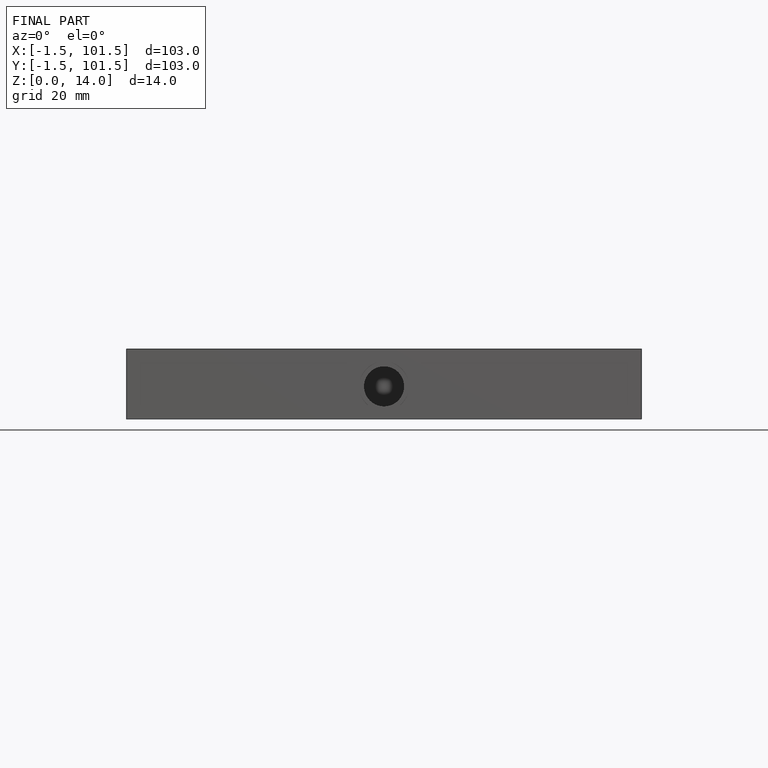
[diagram: finished part — front view with bounding-box wireframe]
